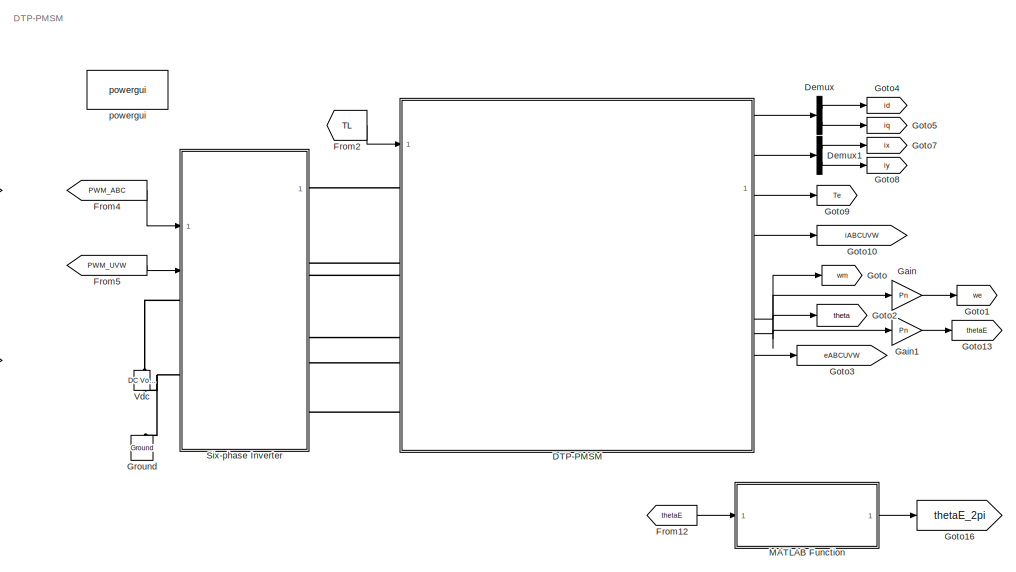
[diagram: root canvas - part 1/2, top right region]
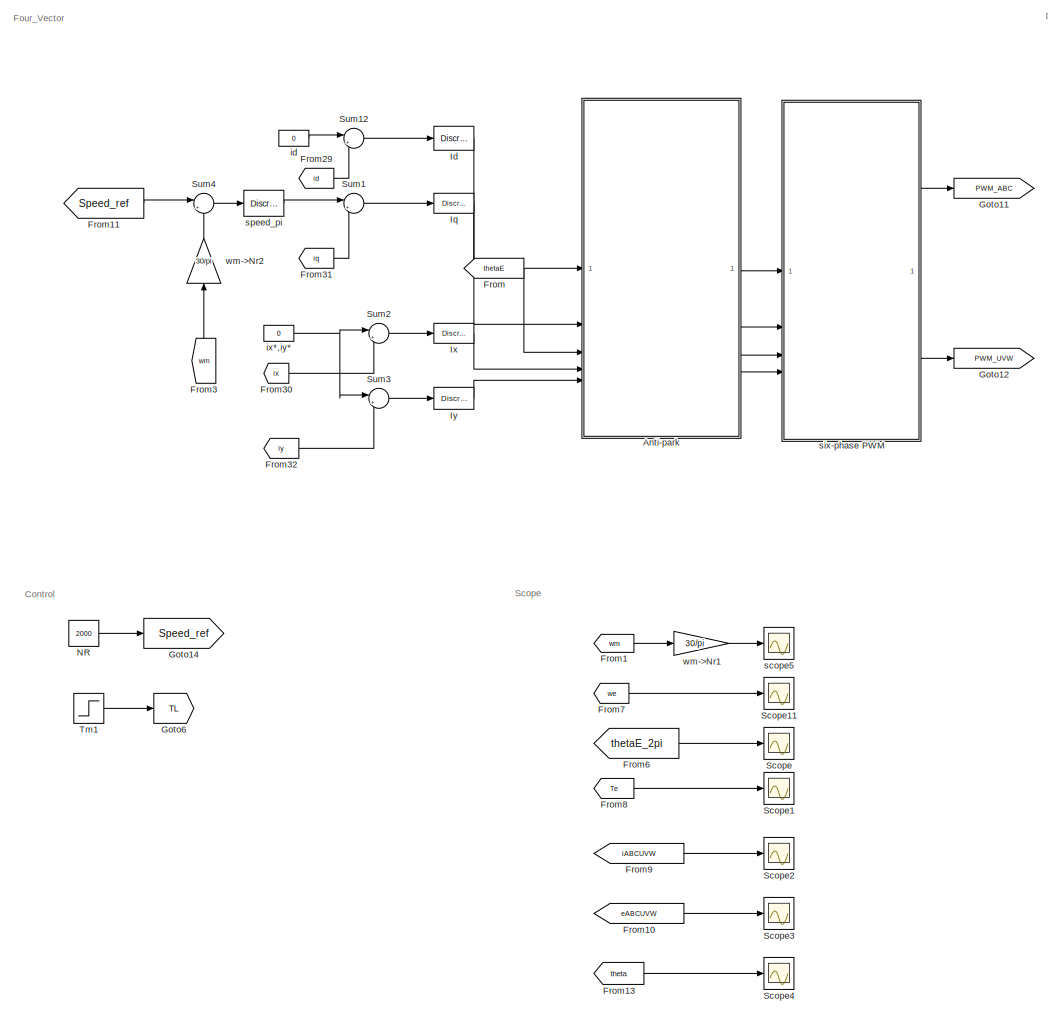
[diagram: root canvas - part 2/2, left side, full height]
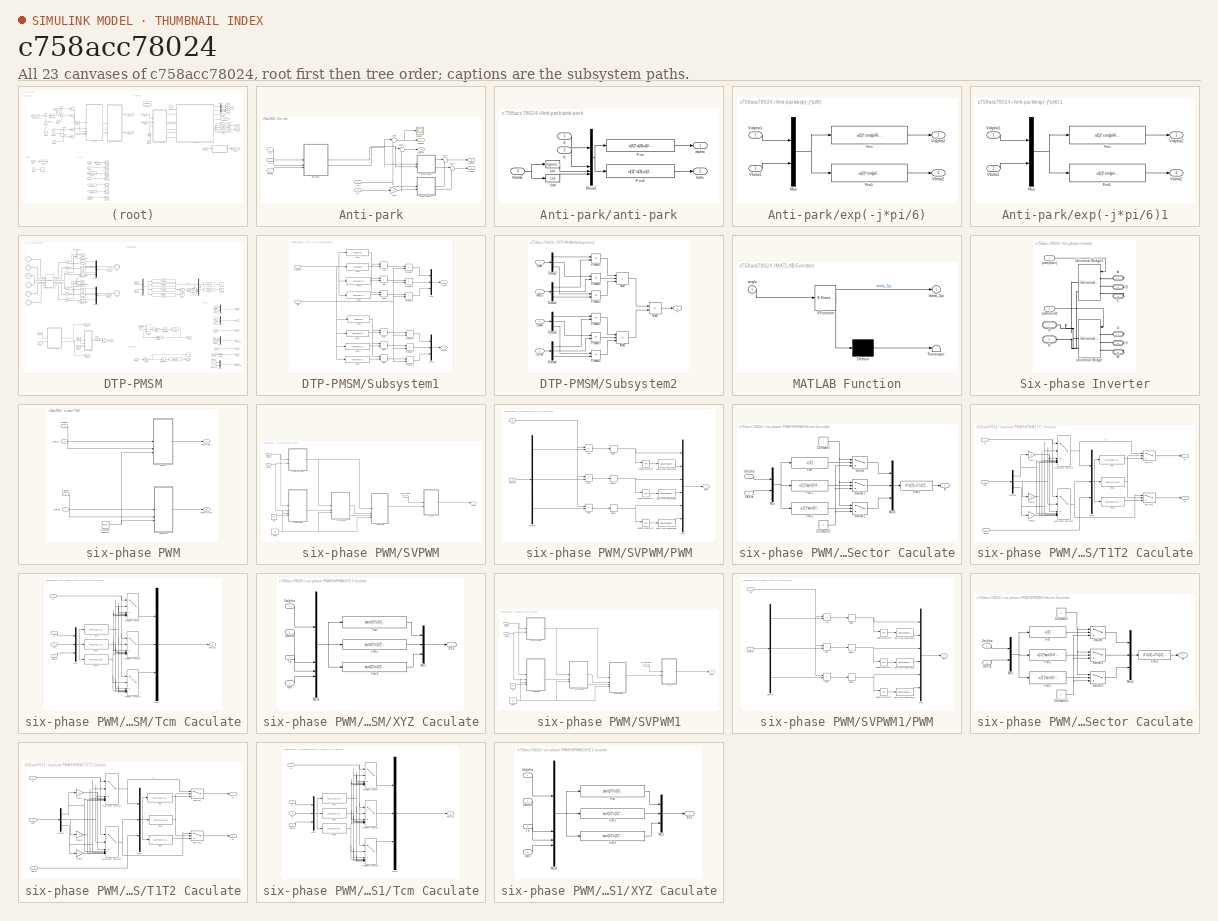
[diagram: thumbnail index - all 23 canvases of the model, root first then tree order]
MODEL slx_c758acc78024
KIND model
CONFIG AbsTol = auto
CONFIG EnableMultiTasking = off
CONFIG FixedStep = 1e-6
CONFIG InitFcn = Udc=100;\nKp_omega = 2;\nKi_omega = 0;\n\nKp_id = 0.008*550;\nKi_id = 1.4*550;\nKp_iq = 0.008*550;\nKi_iq = 1.4*550;\nKp_z  = 0.1;\nKi_z  = 0.0001;\n\nTs = 1e-4;\nflux = 0.015;\nToff = 1.02;
CONFIG MaxStep = auto
CONFIG MinStep = auto
CONFIG RelTol = 1e-3
CONFIG SampleTimeConstraint = Unconstrained
CONFIG SolverName = ode3
CONFIG StartTime = 0.0
CONFIG StopTime = 0.2
WORKSPACE source: mxarray member
WORKSPACE B = 0
WORKSPACE J = 0.000118
WORKSPACE Ki_id = 770
WORKSPACE Ki_iq = 770
WORKSPACE Ki_omega = 0
WORKSPACE Ki_z = 0.0001
WORKSPACE Kp_id = 4.4
WORKSPACE Kp_iq = 4.4
WORKSPACE Kp_omega = 2
WORKSPACE Kp_z = 0.1
WORKSPACE Lm = 1e-05
WORKSPACE Ls = 0.0001
WORKSPACE Pn = 5
WORKSPACE Rs = 0.28
WORKSPACE Toff = 1.02
WORKSPACE Ts = 0.0001
WORKSPACE Vdc = 100
WORKSPACE flux = 0.015
BLOCK [SubSystem] Anti-park
BLOCK [Gain] Anti-park/Gain
  Gain = -1
BLOCK [Scope] Anti-park/Scope7
  Floating = off
  NumInputPorts = 1
  ScopeSpecificationString = Simulink.scopes.TimeScopeBlockCfg('CurrentConfiguration', extmgr.ConfigurationSet(extmgr.Configuration('Core','General UI',true),extmgr.Configuration('Core','Source UI',true),extmgr.Configuration('Sources','WiredSimulink',true,'DataLoggingVariableName','ScopeData1'),extmgr.Configuration('Visuals','Time Domain',true,'SerializedDisplays',{struct('MinYLimReal','-211.12202','MaxYLimReal','209.80293','...<+1541ch>
BLOCK [Sum] Anti-park/Sum
  Inputs = |++
BLOCK [Sum] Anti-park/Sum1
  Inputs = |++
BLOCK [Sum] Anti-park/Sum2
  Inputs = |+-
BLOCK [Sum] Anti-park/Sum3
  Inputs = |+-
BLOCK [Inport] Anti-park/ThetaE
  Port = 3
BLOCK [Outport] Anti-park/Ualpha1
  VectorParamsAs1DForOutWhenUnconnected = off
BLOCK [Outport] Anti-park/Ualpha2
  Port = 3
  VectorParamsAs1DForOutWhenUnconnected = off
BLOCK [Outport] Anti-park/Ubeta1
  Port = 2
  VectorParamsAs1DForOutWhenUnconnected = off
BLOCK [Outport] Anti-park/Ubeta2
  Port = 4
  VectorParamsAs1DForOutWhenUnconnected = off
BLOCK [Inport] Anti-park/Ud
BLOCK [Inport] Anti-park/Uq
  Port = 2
BLOCK [Inport] Anti-park/Ux
  Port = 4
BLOCK [Inport] Anti-park/Uy
  Port = 5
BLOCK [SubSystem] Anti-park/anti-park
BLOCK [Fcn] Anti-park/anti-park/Fcn
  Expr = u[1]*u[4]-u[2]*u[3]
BLOCK [Fcn] Anti-park/anti-park/Fcn1
  Expr = u[1]*u[3]+u[2]*u[4]
BLOCK [Mux] Anti-park/anti-park/Mux2
  DisplayOption = bar
BLOCK [Outport] Anti-park/anti-park/alpha
  VectorParamsAs1DForOutWhenUnconnected = off
BLOCK [Outport] Anti-park/anti-park/beta
  Port = 2
  VectorParamsAs1DForOutWhenUnconnected = off
BLOCK [Trigonometry] Anti-park/anti-park/cos
  Operator = cos
BLOCK [Inport] Anti-park/anti-park/d
BLOCK [Inport] Anti-park/anti-park/q
  Port = 2
BLOCK [Trigonometry] Anti-park/anti-park/sin
BLOCK [Inport] Anti-park/anti-park/thetaE
  Port = 3
BLOCK [SubSystem] Anti-park/exp(-j*pi//6)
BLOCK [Fcn] Anti-park/exp(-j*pi//6)/Fcn
  Expr = u(1)*cos(pi/6)+u(2)*sin(pi/6)
BLOCK [Fcn] Anti-park/exp(-j*pi//6)/Fcn1
  Expr = -u(1)*sin(pi/6)+u(2)*cos(pi/6)
BLOCK [Mux] Anti-park/exp(-j*pi//6)/Mux
  DisplayOption = bar
  Inputs = 2
BLOCK [Inport] Anti-park/exp(-j*pi//6)/Valpha1
BLOCK [Outport] Anti-park/exp(-j*pi//6)/Valpha2
  VectorParamsAs1DForOutWhenUnconnected = off
BLOCK [Inport] Anti-park/exp(-j*pi//6)/Vbeta1
  Port = 2
BLOCK [Outport] Anti-park/exp(-j*pi//6)/Vbeta2
  Port = 2
  VectorParamsAs1DForOutWhenUnconnected = off
BLOCK [SubSystem] Anti-park/exp(-j*pi//6)1
BLOCK [Fcn] Anti-park/exp(-j*pi//6)1/Fcn
  Expr = u(1)*cos(pi/6)+u(2)*sin(pi/6)
BLOCK [Fcn] Anti-park/exp(-j*pi//6)1/Fcn1
  Expr = -u(1)*sin(pi/6)+u(2)*cos(pi/6)
BLOCK [Mux] Anti-park/exp(-j*pi//6)1/Mux
  DisplayOption = bar
  Inputs = 2
BLOCK [Inport] Anti-park/exp(-j*pi//6)1/Valpha1
BLOCK [Outport] Anti-park/exp(-j*pi//6)1/Valpha2
  VectorParamsAs1DForOutWhenUnconnected = off
BLOCK [Inport] Anti-park/exp(-j*pi//6)1/Vbeta1
  Port = 2
BLOCK [Outport] Anti-park/exp(-j*pi//6)1/Vbeta2
  Port = 2
  VectorParamsAs1DForOutWhenUnconnected = off
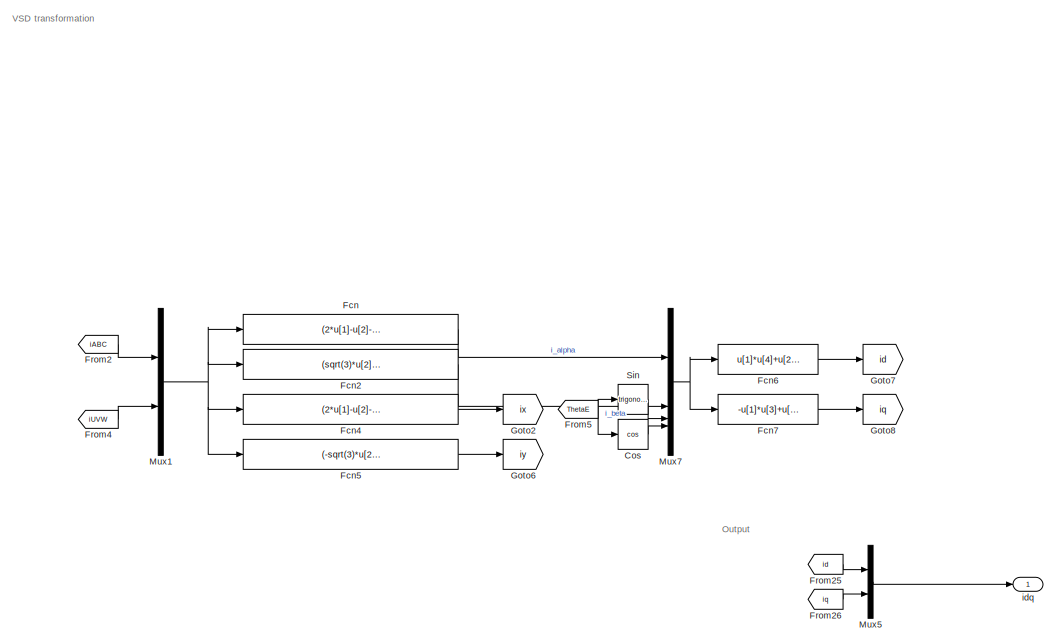
[diagram: DTP-PMSM - part 1/3, top right region]
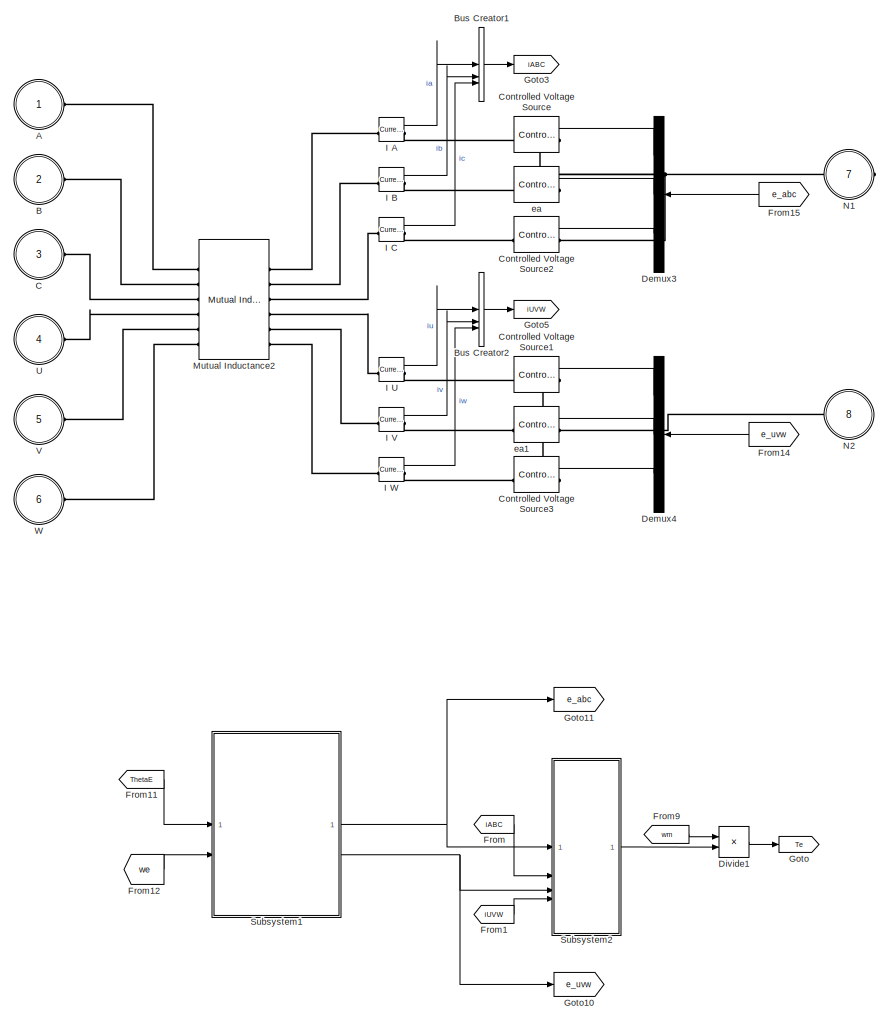
[diagram: DTP-PMSM - part 2/3, left side, full height]
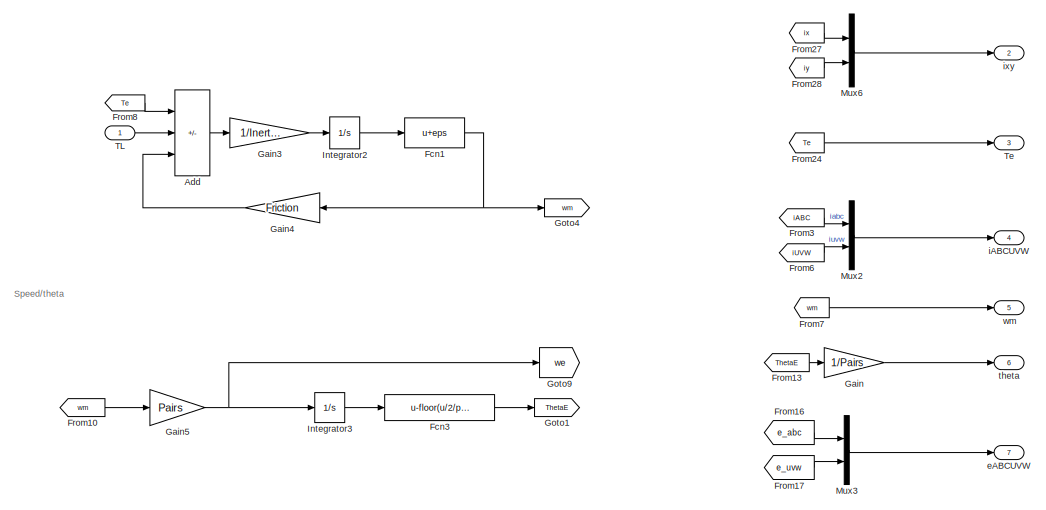
[diagram: DTP-PMSM - part 3/3, bottom right region]
BLOCK [SubSystem] DTP-PMSM
BLOCK [PMIOPort] DTP-PMSM/A
  Side = Left
BLOCK [Sum] DTP-PMSM/Add
  IconShape = rectangular
  Inputs = +--
BLOCK [PMIOPort] DTP-PMSM/B
  Port = 2
  Side = Left
BLOCK [BusCreator] DTP-PMSM/Bus Creator1
  DisplayOption = bar
  InheritFromInputs = on
  Inputs = 3
BLOCK [BusCreator] DTP-PMSM/Bus Creator2
  DisplayOption = bar
  InheritFromInputs = on
  Inputs = 3
BLOCK [PMIOPort] DTP-PMSM/C
  Port = 3
  Side = Left
BLOCK [Reference] DTP-PMSM/Controlled Voltage Source  REF=spsControlledVoltageSourceLib/Controlled Voltage Source
  LibrarySourceBlock = sps_lib/Sources/Controlled Voltage Source
  NameLocation = top
  SourceBlock = spsControlledVoltageSourceLib/Controlled Voltage Source
  SourceType = Controlled Voltage Source
BLOCK [Reference] DTP-PMSM/Controlled Voltage Source1  REF=spsControlledVoltageSourceLib/Controlled Voltage Source
  LibrarySourceBlock = sps_lib/Sources/Controlled Voltage Source
  NameLocation = top
  SourceBlock = spsControlledVoltageSourceLib/Controlled Voltage Source
  SourceType = Controlled Voltage Source
BLOCK [Reference] DTP-PMSM/Controlled Voltage Source2  REF=spsControlledVoltageSourceLib/Controlled Voltage Source
  LibrarySourceBlock = sps_lib/Sources/Controlled Voltage Source
  NameLocation = top
  SourceBlock = spsControlledVoltageSourceLib/Controlled Voltage Source
  SourceType = Controlled Voltage Source
BLOCK [Reference] DTP-PMSM/Controlled Voltage Source3  REF=spsControlledVoltageSourceLib/Controlled Voltage Source
  LibrarySourceBlock = sps_lib/Sources/Controlled Voltage Source
  NameLocation = top
  SourceBlock = spsControlledVoltageSourceLib/Controlled Voltage Source
  SourceType = Controlled Voltage Source
BLOCK [Trigonometry] DTP-PMSM/Cos
  Operator = cos
BLOCK [Demux] DTP-PMSM/Demux3
  NameLocation = top
  Outputs = 3
BLOCK [Demux] DTP-PMSM/Demux4
  NameLocation = top
  Outputs = 3
BLOCK [Product] DTP-PMSM/Divide1
  Inputs = /*
BLOCK [Fcn] DTP-PMSM/Fcn
  Expr = (2*u[1]-u[2]-u[3]+sqrt(3)*u[4]-sqrt(3)*u[5])/6
BLOCK [Fcn] DTP-PMSM/Fcn1
  Expr = u+eps
  NameLocation = top
BLOCK [Fcn] DTP-PMSM/Fcn2
  Expr = (sqrt(3)*u[2]-sqrt(3)*u[3]+u[4]+u[5]-2*u[6])/6
BLOCK [Fcn] DTP-PMSM/Fcn3
  Commented = through
  Expr = u-floor(u/2/pi)*2*pi
BLOCK [Fcn] DTP-PMSM/Fcn4
  Expr = (2*u[1]-u[2]-u[3]-sqrt(3)*u[4]+sqrt(3)*u[5])/6
BLOCK [Fcn] DTP-PMSM/Fcn5
  Expr = (-sqrt(3)*u[2]+sqrt(3)*u[3]+u[4]+u[5]-2*u[6])/6
BLOCK [Fcn] DTP-PMSM/Fcn6
  Expr = u[1]*u[4]+u[2]*u[3]
BLOCK [Fcn] DTP-PMSM/Fcn7
  Expr = -u[1]*u[3]+u[2]*u[4]
BLOCK [From] DTP-PMSM/From
  GotoTag = iABC
  TagVisibility = global
BLOCK [From] DTP-PMSM/From1
  GotoTag = iUVW
  TagVisibility = global
BLOCK [From] DTP-PMSM/From10
  GotoTag = wm
  TagVisibility = global
BLOCK [From] DTP-PMSM/From11
  GotoTag = ThetaE
  TagVisibility = global
BLOCK [From] DTP-PMSM/From12
  GotoTag = we
BLOCK [From] DTP-PMSM/From13
  GotoTag = ThetaE
  TagVisibility = global
BLOCK [From] DTP-PMSM/From14
  GotoTag = e_uvw
BLOCK [From] DTP-PMSM/From15
  GotoTag = e_abc
BLOCK [From] DTP-PMSM/From16
  GotoTag = e_abc
BLOCK [From] DTP-PMSM/From17
  GotoTag = e_uvw
BLOCK [From] DTP-PMSM/From2
  GotoTag = iABC
  TagVisibility = global
BLOCK [From] DTP-PMSM/From24
  GotoTag = Te
  TagVisibility = global
BLOCK [From] DTP-PMSM/From25
  GotoTag = id
  TagVisibility = global
BLOCK [From] DTP-PMSM/From26
  GotoTag = iq
  TagVisibility = global
BLOCK [From] DTP-PMSM/From27
  GotoTag = ix
  TagVisibility = global
BLOCK [From] DTP-PMSM/From28
  GotoTag = iy
  TagVisibility = global
BLOCK [From] DTP-PMSM/From3
  GotoTag = iABC
  TagVisibility = global
BLOCK [From] DTP-PMSM/From4
  GotoTag = iUVW
  TagVisibility = global
BLOCK [From] DTP-PMSM/From5
  GotoTag = ThetaE
  TagVisibility = global
BLOCK [From] DTP-PMSM/From6
  GotoTag = iUVW
  TagVisibility = global
BLOCK [From] DTP-PMSM/From7
  GotoTag = wm
  TagVisibility = global
BLOCK [From] DTP-PMSM/From8
  GotoTag = Te
  TagVisibility = global
BLOCK [From] DTP-PMSM/From9
  GotoTag = wm
  TagVisibility = global
BLOCK [Gain] DTP-PMSM/Gain
  Gain = 1/Pairs
BLOCK [Gain] DTP-PMSM/Gain3
  Gain = 1/Inertia
BLOCK [Gain] DTP-PMSM/Gain4
  Gain = Friction
BLOCK [Gain] DTP-PMSM/Gain5
  Gain = Pairs
BLOCK [Goto] DTP-PMSM/Goto
  GotoTag = Te
  TagVisibility = global
BLOCK [Goto] DTP-PMSM/Goto1
  GotoTag = ThetaE
  TagVisibility = global
BLOCK [Goto] DTP-PMSM/Goto10
  GotoTag = e_uvw
BLOCK [Goto] DTP-PMSM/Goto11
  GotoTag = e_abc
BLOCK [Goto] DTP-PMSM/Goto2
  GotoTag = ix
  TagVisibility = global
BLOCK [Goto] DTP-PMSM/Goto3
  GotoTag = iABC
  TagVisibility = global
BLOCK [Goto] DTP-PMSM/Goto4
  GotoTag = wm
  TagVisibility = global
BLOCK [Goto] DTP-PMSM/Goto5
  GotoTag = iUVW
  TagVisibility = global
BLOCK [Goto] DTP-PMSM/Goto6
  GotoTag = iy
  TagVisibility = global
BLOCK [Goto] DTP-PMSM/Goto7
  GotoTag = id
  TagVisibility = global
BLOCK [Goto] DTP-PMSM/Goto8
  GotoTag = iq
  TagVisibility = global
BLOCK [Goto] DTP-PMSM/Goto9
  GotoTag = we
  NameLocation = top
BLOCK [Reference] DTP-PMSM/I A  REF=spsCurrentMeasurementLib/Current Measurement
  LibrarySourceBlock = sps_lib/Sensors and Measurements/Current Measurement
  SourceBlock = spsCurrentMeasurementLib/Current Measurement
  SourceType = Current Measurement
BLOCK [Reference] DTP-PMSM/I B  REF=spsCurrentMeasurementLib/Current Measurement
  LibrarySourceBlock = sps_lib/Sensors and Measurements/Current Measurement
  SourceBlock = spsCurrentMeasurementLib/Current Measurement
  SourceType = Current Measurement
BLOCK [Reference] DTP-PMSM/I C  REF=spsCurrentMeasurementLib/Current Measurement
  LibrarySourceBlock = sps_lib/Sensors and Measurements/Current Measurement
  SourceBlock = spsCurrentMeasurementLib/Current Measurement
  SourceType = Current Measurement
BLOCK [Reference] DTP-PMSM/I U  REF=spsCurrentMeasurementLib/Current Measurement
  LibrarySourceBlock = sps_lib/Sensors and Measurements/Current Measurement
  SourceBlock = spsCurrentMeasurementLib/Current Measurement
  SourceType = Current Measurement
BLOCK [Reference] DTP-PMSM/I V  REF=spsCurrentMeasurementLib/Current Measurement
  LibrarySourceBlock = sps_lib/Sensors and Measurements/Current Measurement
  SourceBlock = spsCurrentMeasurementLib/Current Measurement
  SourceType = Current Measurement
BLOCK [Reference] DTP-PMSM/I W  REF=spsCurrentMeasurementLib/Current Measurement
  LibrarySourceBlock = sps_lib/Sensors and Measurements/Current Measurement
  SourceBlock = spsCurrentMeasurementLib/Current Measurement
  SourceType = Current Measurement
BLOCK [Integrator] DTP-PMSM/Integrator2
  LowerSaturationLimit = -100
  UpperSaturationLimit = 100
BLOCK [Integrator] DTP-PMSM/Integrator3
BLOCK [Reference] DTP-PMSM/Mutual Inductance2  REF=spsMutualInductanceLib/Mutual Inductance
  AttributesFormatString = \n
  LibrarySourceBlock = sps_lib/Passives/Mutual Inductance
  SourceBlock = spsMutualInductanceLib/Mutual Inductance
  SourceType = Mutual Inductance
BLOCK [Mux] DTP-PMSM/Mux1
  DisplayOption = bar
  Inputs = 2
BLOCK [Mux] DTP-PMSM/Mux2
  DisplayOption = bar
  Inputs = 2
BLOCK [Mux] DTP-PMSM/Mux3
  DisplayOption = bar
  Inputs = 2
BLOCK [Mux] DTP-PMSM/Mux5
  DisplayOption = bar
  Inputs = 2
BLOCK [Mux] DTP-PMSM/Mux6
  DisplayOption = bar
  Inputs = 2
BLOCK [Mux] DTP-PMSM/Mux7
  DisplayOption = bar
BLOCK [PMIOPort] DTP-PMSM/N1
  Port = 7
  Side = Right
BLOCK [PMIOPort] DTP-PMSM/N2
  Port = 8
  Side = Right
BLOCK [Trigonometry] DTP-PMSM/Sin
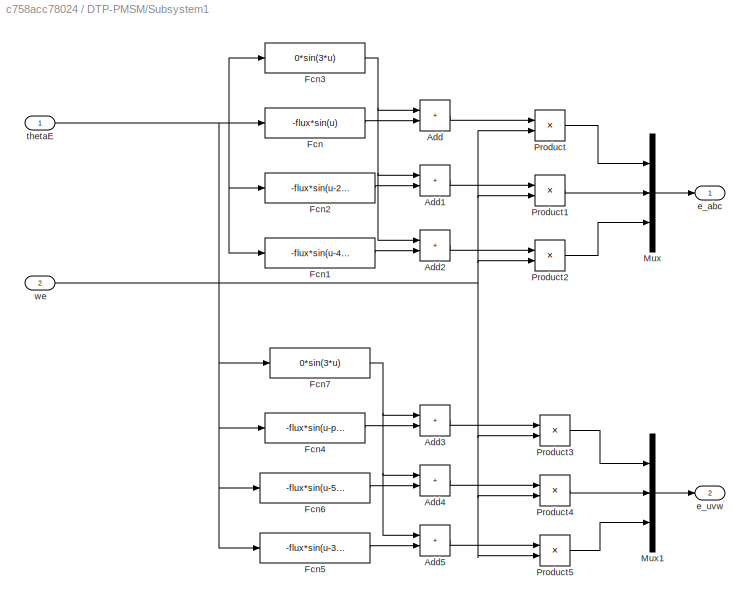
BLOCK [SubSystem] DTP-PMSM/Subsystem1
BLOCK [Sum] DTP-PMSM/Subsystem1/Add
  IconShape = rectangular
BLOCK [Sum] DTP-PMSM/Subsystem1/Add1
  IconShape = rectangular
BLOCK [Sum] DTP-PMSM/Subsystem1/Add2
  IconShape = rectangular
BLOCK [Sum] DTP-PMSM/Subsystem1/Add3
  IconShape = rectangular
BLOCK [Sum] DTP-PMSM/Subsystem1/Add4
  IconShape = rectangular
BLOCK [Sum] DTP-PMSM/Subsystem1/Add5
  IconShape = rectangular
BLOCK [Fcn] DTP-PMSM/Subsystem1/Fcn
  Expr = -flux*sin(u)
BLOCK [Fcn] DTP-PMSM/Subsystem1/Fcn1
  Expr = -flux*sin(u-4*pi/3)
BLOCK [Fcn] DTP-PMSM/Subsystem1/Fcn2
  Expr = -flux*sin(u-2*pi/3)
BLOCK [Fcn] DTP-PMSM/Subsystem1/Fcn3
  Expr = 0*sin(3*u)
BLOCK [Fcn] DTP-PMSM/Subsystem1/Fcn4
  Expr = -flux*sin(u-pi/6)
BLOCK [Fcn] DTP-PMSM/Subsystem1/Fcn5
  Expr = -flux*sin(u-3*pi/2)
BLOCK [Fcn] DTP-PMSM/Subsystem1/Fcn6
  Expr = -flux*sin(u-5*pi/6)
BLOCK [Fcn] DTP-PMSM/Subsystem1/Fcn7
  Expr = 0*sin(3*u)
BLOCK [Mux] DTP-PMSM/Subsystem1/Mux
  DisplayOption = bar
  Inputs = 3
BLOCK [Mux] DTP-PMSM/Subsystem1/Mux1
  DisplayOption = bar
  Inputs = 3
BLOCK [Product] DTP-PMSM/Subsystem1/Product
BLOCK [Product] DTP-PMSM/Subsystem1/Product1
BLOCK [Product] DTP-PMSM/Subsystem1/Product2
BLOCK [Product] DTP-PMSM/Subsystem1/Product3
BLOCK [Product] DTP-PMSM/Subsystem1/Product4
BLOCK [Product] DTP-PMSM/Subsystem1/Product5
BLOCK [Outport] DTP-PMSM/Subsystem1/e_abc
BLOCK [Outport] DTP-PMSM/Subsystem1/e_uvw
  Port = 2
BLOCK [Inport] DTP-PMSM/Subsystem1/thetaE
BLOCK [Inport] DTP-PMSM/Subsystem1/we
  Port = 2
BLOCK [SubSystem] DTP-PMSM/Subsystem2
BLOCK [Sum] DTP-PMSM/Subsystem2/Add
  IconShape = rectangular
  Inputs = +++
BLOCK [Sum] DTP-PMSM/Subsystem2/Add1
  IconShape = rectangular
  Inputs = +++
BLOCK [Sum] DTP-PMSM/Subsystem2/Add2
  IconShape = rectangular
BLOCK [Demux] DTP-PMSM/Subsystem2/Demux1
  Outputs = 3
BLOCK [Demux] DTP-PMSM/Subsystem2/Demux2
  Outputs = 3
BLOCK [Demux] DTP-PMSM/Subsystem2/Demux3
  Outputs = 3
BLOCK [Demux] DTP-PMSM/Subsystem2/Demux4
  Outputs = 3
BLOCK [Outport] DTP-PMSM/Subsystem2/P
BLOCK [Product] DTP-PMSM/Subsystem2/Product1
BLOCK [Product] DTP-PMSM/Subsystem2/Product2
BLOCK [Product] DTP-PMSM/Subsystem2/Product3
BLOCK [Product] DTP-PMSM/Subsystem2/Product4
BLOCK [Product] DTP-PMSM/Subsystem2/Product5
BLOCK [Product] DTP-PMSM/Subsystem2/Product6
BLOCK [Inport] DTP-PMSM/Subsystem2/e_abc
BLOCK [Inport] DTP-PMSM/Subsystem2/e_uvw
  Port = 3
BLOCK [Inport] DTP-PMSM/Subsystem2/iABC
  Port = 2
BLOCK [Inport] DTP-PMSM/Subsystem2/iUVW
  Port = 4
BLOCK [Inport] DTP-PMSM/TL
BLOCK [Outport] DTP-PMSM/Te
  Port = 3
  VectorParamsAs1DForOutWhenUnconnected = off
BLOCK [PMIOPort] DTP-PMSM/U
  Port = 4
  Side = Left
BLOCK [PMIOPort] DTP-PMSM/V
  Port = 5
  Side = Left
BLOCK [PMIOPort] DTP-PMSM/W
  Port = 6
  Side = Left
BLOCK [Outport] DTP-PMSM/eABCUVW
  Port = 7
  VectorParamsAs1DForOutWhenUnconnected = off
BLOCK [Reference] DTP-PMSM/ea  REF=spsControlledVoltageSourceLib/Controlled Voltage Source
  LibrarySourceBlock = sps_lib/Sources/Controlled Voltage Source
  NameLocation = top
  SourceBlock = spsControlledVoltageSourceLib/Controlled Voltage Source
  SourceType = Controlled Voltage Source
BLOCK [Reference] DTP-PMSM/ea1  REF=spsControlledVoltageSourceLib/Controlled Voltage Source
  LibrarySourceBlock = sps_lib/Sources/Controlled Voltage Source
  NameLocation = top
  SourceBlock = spsControlledVoltageSourceLib/Controlled Voltage Source
  SourceType = Controlled Voltage Source
BLOCK [Outport] DTP-PMSM/iABCUVW
  Port = 4
  VectorParamsAs1DForOutWhenUnconnected = off
BLOCK [Outport] DTP-PMSM/idq
  VectorParamsAs1DForOutWhenUnconnected = off
BLOCK [Outport] DTP-PMSM/ixy
  Port = 2
  VectorParamsAs1DForOutWhenUnconnected = off
BLOCK [Outport] DTP-PMSM/theta
  Port = 6
  VectorParamsAs1DForOutWhenUnconnected = off
BLOCK [Outport] DTP-PMSM/wm
  Port = 5
  VectorParamsAs1DForOutWhenUnconnected = off
BLOCK [Demux] Demux
  Outputs = 2
BLOCK [Demux] Demux1
  Outputs = 2
BLOCK [From] From
  GotoTag = thetaE
BLOCK [From] From1
  GotoTag = wm
BLOCK [From] From10
  GotoTag = eABCUVW
BLOCK [From] From11
  GotoTag = Speed_ref
BLOCK [From] From12
  GotoTag = thetaE
BLOCK [From] From13
  GotoTag = theta
BLOCK [From] From2
  GotoTag = TL
BLOCK [From] From29
  GotoTag = id
BLOCK [From] From3
  GotoTag = wm
  NameLocation = right
BLOCK [From] From30
  GotoTag = ix
BLOCK [From] From31
  GotoTag = iq
BLOCK [From] From32
  GotoTag = iy
BLOCK [From] From4
  GotoTag = PWM_ABC
BLOCK [From] From5
  GotoTag = PWM_UVW
BLOCK [From] From6
  GotoTag = thetaE_2pi
BLOCK [From] From7
  GotoTag = we
BLOCK [From] From8
  GotoTag = Te
BLOCK [From] From9
  GotoTag = iABCUVW
BLOCK [Gain] Gain
  Gain = Pn
BLOCK [Gain] Gain1
  Gain = Pn
BLOCK [Goto] Goto
  GotoTag = wm
BLOCK [Goto] Goto1
  GotoTag = we
BLOCK [Goto] Goto10
  GotoTag = iABCUVW
BLOCK [Goto] Goto11
  GotoTag = PWM_ABC
BLOCK [Goto] Goto12
  GotoTag = PWM_UVW
BLOCK [Goto] Goto13
  GotoTag = thetaE
BLOCK [Goto] Goto14
  GotoTag = Speed_ref
BLOCK [Goto] Goto16
  GotoTag = thetaE_2pi
BLOCK [Goto] Goto2
  GotoTag = theta
BLOCK [Goto] Goto3
  GotoTag = eABCUVW
BLOCK [Goto] Goto4
  GotoTag = id
BLOCK [Goto] Goto5
  GotoTag = iq
BLOCK [Goto] Goto6
  GotoTag = TL
BLOCK [Goto] Goto7
  GotoTag = ix
BLOCK [Goto] Goto8
  GotoTag = iy
BLOCK [Goto] Goto9
  GotoTag = Te
BLOCK [Reference] Ground  REF=spsGroundLib/Ground
  LibrarySourceBlock = sps_lib/Utilities/Ground
  NameLocation = right
  SourceBlock = spsGroundLib/Ground
  SourceType = Ground
BLOCK [Reference] Id  REF=powerlib_extras/Discrete 
Control Blocks/Discrete
PI Controller
  NameLocation = top
  SourceBlock = powerlib_extras/Discrete \nControl Blocks/Discrete\nPI Controller
  SourceType = Discrete PI Controller
BLOCK [Reference] Iq  REF=powerlib_extras/Discrete 
Control Blocks/Discrete
PI Controller
  NameLocation = top
  SourceBlock = powerlib_extras/Discrete \nControl Blocks/Discrete\nPI Controller
  SourceType = Discrete PI Controller
BLOCK [Reference] Ix  REF=powerlib_extras/Discrete 
Control Blocks/Discrete
PI Controller
  NameLocation = top
  SourceBlock = powerlib_extras/Discrete \nControl Blocks/Discrete\nPI Controller
  SourceType = Discrete PI Controller
BLOCK [Reference] Iy  REF=powerlib_extras/Discrete 
Control Blocks/Discrete
PI Controller
  NameLocation = top
  SourceBlock = powerlib_extras/Discrete \nControl Blocks/Discrete\nPI Controller
  SourceType = Discrete PI Controller
BLOCK [SubSystem] MATLAB Function
  ErrorFcn = Stateflow.Translate.translate
  NameLocation = top
  PermitHierarchicalResolution = ExplicitOnly
  SFBlockType = MATLAB Function
  TreatAsAtomicUnit = on
BLOCK [Demux] MATLAB Function/ Demux 
  Outputs = 1
BLOCK [S-Function] MATLAB Function/ SFunction 
  EnableBusSupport = on
  FunctionName = sf_sfun
  PortCounts = [1 2]
  SFcnIsStateOwnerBlock = off
  SFunctionDeploymentMode = off
  Tag = Stateflow S-Function 1
BLOCK [Terminator] MATLAB Function/ Terminator 
BLOCK [Inport] MATLAB Function/angle
BLOCK [Outport] MATLAB Function/theta_2pi
BLOCK [Constant] NR
  Value = 2000
BLOCK [Scope] Scope
  Floating = off
  NumInputPorts = 1
  ScopeSpecificationString = Simulink.scopes.TimeScopeBlockCfg('CurrentConfiguration', extmgr.ConfigurationSet(extmgr.Configuration('Core','General UI',true),extmgr.Configuration('Core','Source UI',true),extmgr.Configuration('Sources','WiredSimulink',true,'DataLoggingVariableName','ScopeData1'),extmgr.Configuration('Visuals','Time Domain',true,'SerializedDisplays',{struct('MinYLimReal','-0.78538','MaxYLimReal','7.06846','YLab...<+1531ch>
BLOCK [Scope] Scope1
  Floating = off
  NumInputPorts = 1
  ScopeSpecificationString = Simulink.scopes.TimeScopeBlockCfg('CurrentConfiguration', extmgr.ConfigurationSet(extmgr.Configuration('Core','General UI',true),extmgr.Configuration('Core','Source UI',true),extmgr.Configuration('Sources','WiredSimulink',true,'DataLoggingVariableName','ScopeData2'),extmgr.Configuration('Visuals','Time Domain',true,'SerializedDisplays',{struct('MinYLimReal','-1.57619','MaxYLimReal','9.1824','YLabe...<+1485ch>
BLOCK [Scope] Scope11
  Floating = off
  NumInputPorts = 1
  ScopeSpecificationString = Simulink.scopes.TimeScopeBlockCfg('CurrentConfiguration', extmgr.ConfigurationSet(extmgr.Configuration('Core','General UI',true),extmgr.Configuration('Core','Source UI',true),extmgr.Configuration('Sources','WiredSimulink',true,'DataLoggingVariableName','ScopeData1'),extmgr.Configuration('Visuals','Time Domain',true,'SerializedDisplays',{struct('MinYLimReal','-69.97864','MaxYLimReal','629.80772','Y...<+1670ch>
BLOCK [Scope] Scope2
  Floating = off
  NumInputPorts = 1
  ScopeSpecificationString = Simulink.scopes.TimeScopeBlockCfg('CurrentConfiguration', extmgr.ConfigurationSet(extmgr.Configuration('Core','General UI',true),extmgr.Configuration('Core','Source UI',true),extmgr.Configuration('Sources','WiredSimulink',true,'DataLoggingVariableName','ScopeData3'),extmgr.Configuration('Visuals','Time Domain',true,'SerializedDisplays',{struct('MinYLimReal','-44.87766','MaxYLimReal','45.27174','YL...<+1753ch>
BLOCK [Scope] Scope3
  Floating = off
  NumInputPorts = 1
  ScopeSpecificationString = Simulink.scopes.TimeScopeBlockCfg('CurrentConfiguration', extmgr.ConfigurationSet(extmgr.Configuration('Core','General UI',true),extmgr.Configuration('Core','Source UI',true),extmgr.Configuration('Sources','WiredSimulink',true,'DataLoggingVariableName','ScopeData4'),extmgr.Configuration('Visuals','Time Domain',true,'SerializedDisplays',{struct('MinYLimReal','-29.88475','MaxYLimReal','29.88189','YL...<+1592ch>
BLOCK [Scope] Scope4
  Floating = off
  NumInputPorts = 1
  ScopeSpecificationString = Simulink.scopes.TimeScopeBlockCfg('CurrentConfiguration', extmgr.ConfigurationSet(extmgr.Configuration('Core','General UI',true),extmgr.Configuration('Core','Source UI',true),extmgr.Configuration('Sources','WiredSimulink',true,'DataLoggingVariableName','ScopeData5'),extmgr.Configuration('Visuals','Time Domain',true),extmgr.Configuration('Tools','Plot Navigation',true),extmgr.Configuration('Tools',...<+40ch>
BLOCK [SubSystem] Six-phase Inverter
BLOCK [PMIOPort] Six-phase Inverter/A
  Side = Right
BLOCK [PMIOPort] Six-phase Inverter/B
  Port = 2
  Side = Right
BLOCK [PMIOPort] Six-phase Inverter/C
  Port = 3
  Side = Right
BLOCK [PMIOPort] Six-phase Inverter/N
  Port = 8
  Side = Left
BLOCK [PMIOPort] Six-phase Inverter/P
  Port = 7
  Side = Left
BLOCK [PMIOPort] Six-phase Inverter/U
  Port = 4
  Side = Right
BLOCK [Reference] Six-phase Inverter/Universal Bridge  REF=spsUniversalBridgeLib/Universal Bridge
  LibrarySourceBlock = sps_lib/Power Electronics/Universal Bridge
  SourceBlock = spsUniversalBridgeLib/Universal Bridge
  SourceType = Universal Bridge
BLOCK [Reference] Six-phase Inverter/Universal Bridge1  REF=spsUniversalBridgeLib/Universal Bridge
  LibrarySourceBlock = sps_lib/Power Electronics/Universal Bridge
  SourceBlock = spsUniversalBridgeLib/Universal Bridge
  SourceType = Universal Bridge
BLOCK [PMIOPort] Six-phase Inverter/V
  Port = 5
  Side = Right
BLOCK [PMIOPort] Six-phase Inverter/W
  Port = 6
  Side = Right
BLOCK [Inport] Six-phase Inverter/pwm(abc)
BLOCK [Inport] Six-phase Inverter/pwm(uvw)
  Port = 2
BLOCK [Sum] Sum1
  Inputs = |+-
BLOCK [Sum] Sum12
  Inputs = |+-
BLOCK [Sum] Sum2
  Inputs = |+-
BLOCK [Sum] Sum3
  Inputs = |+-
BLOCK [Sum] Sum4
  Inputs = |+-
BLOCK [Step] Tm1
  SampleTime = 0
  Time = 0.1
BLOCK [Reference] Vdc  REF=spsDCVoltageSourceLib/DC Voltage Source
  LibrarySourceBlock = sps_lib/Sources/DC Voltage Source
  NameLocation = right
  SourceBlock = spsDCVoltageSourceLib/DC Voltage Source
  SourceType = DC Voltage Source
BLOCK [Constant] id
  Value = 0
BLOCK [Constant] ix*,iy*
  Value = 0
BLOCK [Reference] powergui  REF=spspowerguiLib/powergui
  LibrarySourceBlock = sps_lib/powergui
  Priority = 1
  SourceBlock = spspowerguiLib/powergui
  SourceType = PSB option menu block
BLOCK [Scope] scope5
  Floating = off
  NumInputPorts = 1
  ScopeSpecificationString = Simulink.scopes.TimeScopeBlockCfg('CurrentConfiguration', extmgr.ConfigurationSet(extmgr.Configuration('Core','General UI',true,'FigureColor',[0.8 0.8 0.8]),extmgr.Configuration('Core','Source UI',true),extmgr.Configuration('Sources','WiredSimulink',true,'DataLogging',true,'DataLoggingVariableName','ScopeData1','DataLoggingSaveFormat','StructureWithTime','DataLoggingDecimation','1','DataLoggingDec...<+2818ch>
BLOCK [SubSystem] six-phase PWM
BLOCK [Outport] six-phase PWM/PWM(ABC)
BLOCK [Outport] six-phase PWM/PWM(UVW)
  Port = 2
BLOCK [Reference] six-phase PWM/Repeating Sequence  REF=simulink/Sources/Repeating
Sequence
  SourceBlock = simulink/Sources/Repeating\nSequence
  SourceType = Repeating table
BLOCK [SubSystem] six-phase PWM/SVPWM
BLOCK [Inport] six-phase PWM/SVPWM/Carrier wave
  Port = 3
BLOCK [SubSystem] six-phase PWM/SVPWM/PWM
BLOCK [Sum] six-phase PWM/SVPWM/PWM/Add
  IconShape = rectangular
  Inputs = +-
BLOCK [Sum] six-phase PWM/SVPWM/PWM/Add1
  IconShape = rectangular
  Inputs = +-
BLOCK [Sum] six-phase PWM/SVPWM/PWM/Add2
  IconShape = rectangular
  Inputs = +-
BLOCK [DataTypeConversion] six-phase PWM/SVPWM/PWM/Data Type Conversion1
  OutDataTypeStr = double
BLOCK [DataTypeConversion] six-phase PWM/SVPWM/PWM/Data Type Conversion2
  OutDataTypeStr = double
BLOCK [DataTypeConversion] six-phase PWM/SVPWM/PWM/Data Type Conversion3
  OutDataTypeStr = double
BLOCK [Demux] six-phase PWM/SVPWM/PWM/Demux
  Outputs = 3
BLOCK [Inport] six-phase PWM/SVPWM/PWM/In
BLOCK [Logic] six-phase PWM/SVPWM/PWM/Logical Operator
  AllPortsSameDT = off
  Operator = NOT
  OutDataTypeStr = boolean
BLOCK [Logic] six-phase PWM/SVPWM/PWM/Logical Operator1
  AllPortsSameDT = off
  Operator = NOT
  OutDataTypeStr = boolean
BLOCK [Logic] six-phase PWM/SVPWM/PWM/Logical Operator2
  AllPortsSameDT = off
  Operator = NOT
  OutDataTypeStr = boolean
BLOCK [Mux] six-phase PWM/SVPWM/PWM/Mux
  DisplayOption = bar
  Inputs = 6
BLOCK [Outport] six-phase PWM/SVPWM/PWM/PWM
  VectorParamsAs1DForOutWhenUnconnected = off
BLOCK [Relay] six-phase PWM/SVPWM/PWM/Relay
BLOCK [Relay] six-phase PWM/SVPWM/PWM/Relay1
BLOCK [Relay] six-phase PWM/SVPWM/PWM/Relay2
BLOCK [Inport] six-phase PWM/SVPWM/PWM/Tcm123
  Port = 2
BLOCK [Outport] six-phase PWM/SVPWM/Pulse
  VectorParamsAs1DForOutWhenUnconnected = off
BLOCK [SubSystem] six-phase PWM/SVPWM/Sector Caculate
BLOCK [Constant] six-phase PWM/SVPWM/Sector Caculate/Constant
BLOCK [Constant] six-phase PWM/SVPWM/Sector Caculate/Constant1
  Value = 0
BLOCK [Fcn] six-phase PWM/SVPWM/Sector Caculate/Fcn
  Expr = u[2]
BLOCK [Fcn] six-phase PWM/SVPWM/Sector Caculate/Fcn1
  Expr = u[1]*sqrt(3/4)-0.5*u[2]
BLOCK [Fcn] six-phase PWM/SVPWM/Sector Caculate/Fcn2
  Expr = -u[1]*sqrt(3/4)-0.5*u[2]
BLOCK [Fcn] six-phase PWM/SVPWM/Sector Caculate/Fcn3
  Expr = 4*u[3]+2*u[2]+u[1]
BLOCK [Mux] six-phase PWM/SVPWM/Sector Caculate/Mux
  DisplayOption = bar
  Inputs = 2
BLOCK [Mux] six-phase PWM/SVPWM/Sector Caculate/Mux1
  DisplayOption = bar
  Inputs = 3
BLOCK [Outport] six-phase PWM/SVPWM/Sector Caculate/N
  VectorParamsAs1DForOutWhenUnconnected = off
BLOCK [Switch] six-phase PWM/SVPWM/Sector Caculate/Switch
  Criteria = u2 > Threshold
  InputSameDT = off
  SaturateOnIntegerOverflow = off
BLOCK [Switch] six-phase PWM/SVPWM/Sector Caculate/Switch1
  Criteria = u2 > Threshold
  InputSameDT = off
  SaturateOnIntegerOverflow = off
BLOCK [Switch] six-phase PWM/SVPWM/Sector Caculate/Switch2
  Criteria = u2 > Threshold
  InputSameDT = off
  SaturateOnIntegerOverflow = off
BLOCK [Inport] six-phase PWM/SVPWM/Sector Caculate/Ualpha
BLOCK [Inport] six-phase PWM/SVPWM/Sector Caculate/Ubeta
  Port = 2
BLOCK [SubSystem] six-phase PWM/SVPWM/T1T2 Caculate
BLOCK [Demux] six-phase PWM/SVPWM/T1T2 Caculate/Demux
  Outputs = 3
BLOCK [Fcn] six-phase PWM/SVPWM/T1T2 Caculate/Fcn
  Expr = u[1]*u[3]/(u[1]+u[2])
BLOCK [Fcn] six-phase PWM/SVPWM/T1T2 Caculate/Fcn1
  Expr = u[3]-u[2]-u[1]
BLOCK [Fcn] six-phase PWM/SVPWM/T1T2 Caculate/Fcn2
  Expr = u[2]*u[3]/(u[1]+u[2])
BLOCK [Gain] six-phase PWM/SVPWM/T1T2 Caculate/Gain
  Gain = -1
BLOCK [Gain] six-phase PWM/SVPWM/T1T2 Caculate/Gain1
  Gain = -1
BLOCK [Gain] six-phase PWM/SVPWM/T1T2 Caculate/Gain2
  Gain = -1
BLOCK [MultiPortSwitch] six-phase PWM/SVPWM/T1T2 Caculate/Multiport Switch
  DiagnosticForDefault = None
  InputSameDT = off
  Inputs = 6
  SaturateOnIntegerOverflow = off
BLOCK [MultiPortSwitch] six-phase PWM/SVPWM/T1T2 Caculate/Multiport Switch1
  DiagnosticForDefault = None
  InputSameDT = off
  Inputs = 6
  SaturateOnIntegerOverflow = off
BLOCK [Mux] six-phase PWM/SVPWM/T1T2 Caculate/Mux
  DisplayOption = bar
  Inputs = 3
BLOCK [Inport] six-phase PWM/SVPWM/T1T2 Caculate/N
BLOCK [Switch] six-phase PWM/SVPWM/T1T2 Caculate/Switch
  Criteria = u2 > Threshold
  InputSameDT = off
  SaturateOnIntegerOverflow = off
BLOCK [Switch] six-phase PWM/SVPWM/T1T2 Caculate/Switch1
  Criteria = u2 > Threshold
  InputSameDT = off
  SaturateOnIntegerOverflow = off
BLOCK [Outport] six-phase PWM/SVPWM/T1T2 Caculate/T1
  VectorParamsAs1DForOutWhenUnconnected = off
BLOCK [Outport] six-phase PWM/SVPWM/T1T2 Caculate/T2
  Port = 2
  VectorParamsAs1DForOutWhenUnconnected = off
BLOCK [Inport] six-phase PWM/SVPWM/T1T2 Caculate/Tpwm
  Port = 3
BLOCK [Inport] six-phase PWM/SVPWM/T1T2 Caculate/XYZ
  Port = 2
BLOCK [SubSystem] six-phase PWM/SVPWM/Tcm Caculate
BLOCK [Fcn] six-phase PWM/SVPWM/Tcm Caculate/Fcn
  Expr = (u[3]-u[1]-u[2])/4
BLOCK [Fcn] six-phase PWM/SVPWM/Tcm Caculate/Fcn1
  Expr = (u[3]+u[1]-u[2])/4
BLOCK [Fcn] six-phase PWM/SVPWM/Tcm Caculate/Fcn2
  Expr = (u[3]+u[1]+u[2])/4
BLOCK [MultiPortSwitch] six-phase PWM/SVPWM/Tcm Caculate/Multiport Switch
  DiagnosticForDefault = None
  InputSameDT = off
  Inputs = 6
  SaturateOnIntegerOverflow = off
BLOCK [MultiPortSwitch] six-phase PWM/SVPWM/Tcm Caculate/Multiport Switch1
  DiagnosticForDefault = None
  InputSameDT = off
  Inputs = 6
  SaturateOnIntegerOverflow = off
BLOCK [MultiPortSwitch] six-phase PWM/SVPWM/Tcm Caculate/Multiport Switch2
  DiagnosticForDefault = None
  InputSameDT = off
  Inputs = 6
  SaturateOnIntegerOverflow = off
BLOCK [Mux] six-phase PWM/SVPWM/Tcm Caculate/Mux
  DisplayOption = bar
  Inputs = 3
BLOCK [Mux] six-phase PWM/SVPWM/Tcm Caculate/Mux1
  DisplayOption = bar
  Inputs = 3
BLOCK [Inport] six-phase PWM/SVPWM/Tcm Caculate/N
BLOCK [Inport] six-phase PWM/SVPWM/Tcm Caculate/T1
  Port = 2
BLOCK [Inport] six-phase PWM/SVPWM/Tcm Caculate/T2
  Port = 3
BLOCK [Outport] six-phase PWM/SVPWM/Tcm Caculate/Tcm123
  VectorParamsAs1DForOutWhenUnconnected = off
BLOCK [Inport] six-phase PWM/SVPWM/Tcm Caculate/Tpwm
  Port = 4
BLOCK [Constant] six-phase PWM/SVPWM/Tpwm
  Value = Ts
BLOCK [Inport] six-phase PWM/SVPWM/Ualpha
BLOCK [Inport] six-phase PWM/SVPWM/Ubeta
  Port = 2
BLOCK [Constant] six-phase PWM/SVPWM/Vdc
  Value = Vdc
BLOCK [SubSystem] six-phase PWM/SVPWM/XYZ Caculate
BLOCK [Fcn] six-phase PWM/SVPWM/XYZ Caculate/Fcn
  Expr = (sqrt(3)*u[3]*u[2])/u[4]
BLOCK [Fcn] six-phase PWM/SVPWM/XYZ Caculate/Fcn1
  Expr = sqrt(3)*u[3]*(sqrt(3)*u[1]+u[2])/(2*u[4])
BLOCK [Fcn] six-phase PWM/SVPWM/XYZ Caculate/Fcn3
  Expr = sqrt(3)*u[3]*(-sqrt(3)*u[1]+u[2])/(2*u[4])
BLOCK [Mux] six-phase PWM/SVPWM/XYZ Caculate/Mux
  DisplayOption = bar
  Inputs = 3
BLOCK [Mux] six-phase PWM/SVPWM/XYZ Caculate/Mux1
  DisplayOption = bar
BLOCK [Inport] six-phase PWM/SVPWM/XYZ Caculate/Ts
  Port = 3
BLOCK [Inport] six-phase PWM/SVPWM/XYZ Caculate/Ualpha
BLOCK [Inport] six-phase PWM/SVPWM/XYZ Caculate/Ubeta
  Port = 2
BLOCK [Inport] six-phase PWM/SVPWM/XYZ Caculate/Udc
  Port = 4
BLOCK [Outport] six-phase PWM/SVPWM/XYZ Caculate/XYZ
  VectorParamsAs1DForOutWhenUnconnected = off
BLOCK [SubSystem] six-phase PWM/SVPWM1
BLOCK [Inport] six-phase PWM/SVPWM1/Carrier wave
  Port = 3
BLOCK [SubSystem] six-phase PWM/SVPWM1/PWM
BLOCK [Sum] six-phase PWM/SVPWM1/PWM/Add
  IconShape = rectangular
  Inputs = +-
BLOCK [Sum] six-phase PWM/SVPWM1/PWM/Add1
  IconShape = rectangular
  Inputs = +-
BLOCK [Sum] six-phase PWM/SVPWM1/PWM/Add2
  IconShape = rectangular
  Inputs = +-
BLOCK [DataTypeConversion] six-phase PWM/SVPWM1/PWM/Data Type Conversion1
  OutDataTypeStr = double
BLOCK [DataTypeConversion] six-phase PWM/SVPWM1/PWM/Data Type Conversion2
  OutDataTypeStr = double
BLOCK [DataTypeConversion] six-phase PWM/SVPWM1/PWM/Data Type Conversion3
  OutDataTypeStr = double
BLOCK [Demux] six-phase PWM/SVPWM1/PWM/Demux
  Outputs = 3
BLOCK [Inport] six-phase PWM/SVPWM1/PWM/In
BLOCK [Logic] six-phase PWM/SVPWM1/PWM/Logical Operator
  AllPortsSameDT = off
  Operator = NOT
  OutDataTypeStr = boolean
BLOCK [Logic] six-phase PWM/SVPWM1/PWM/Logical Operator1
  AllPortsSameDT = off
  Operator = NOT
  OutDataTypeStr = boolean
BLOCK [Logic] six-phase PWM/SVPWM1/PWM/Logical Operator2
  AllPortsSameDT = off
  Operator = NOT
  OutDataTypeStr = boolean
BLOCK [Mux] six-phase PWM/SVPWM1/PWM/Mux
  DisplayOption = bar
  Inputs = 6
BLOCK [Outport] six-phase PWM/SVPWM1/PWM/PWM
  VectorParamsAs1DForOutWhenUnconnected = off
BLOCK [Relay] six-phase PWM/SVPWM1/PWM/Relay
BLOCK [Relay] six-phase PWM/SVPWM1/PWM/Relay1
BLOCK [Relay] six-phase PWM/SVPWM1/PWM/Relay2
BLOCK [Inport] six-phase PWM/SVPWM1/PWM/Tcm123
  Port = 2
BLOCK [Outport] six-phase PWM/SVPWM1/Pulse
  VectorParamsAs1DForOutWhenUnconnected = off
BLOCK [SubSystem] six-phase PWM/SVPWM1/Sector Caculate
BLOCK [Constant] six-phase PWM/SVPWM1/Sector Caculate/Constant
BLOCK [Constant] six-phase PWM/SVPWM1/Sector Caculate/Constant1
  Value = 0
BLOCK [Fcn] six-phase PWM/SVPWM1/Sector Caculate/Fcn
  Expr = u[2]
BLOCK [Fcn] six-phase PWM/SVPWM1/Sector Caculate/Fcn1
  Expr = u[1]*sqrt(3/4)-0.5*u[2]
BLOCK [Fcn] six-phase PWM/SVPWM1/Sector Caculate/Fcn2
  Expr = -u[1]*sqrt(3/4)-0.5*u[2]
BLOCK [Fcn] six-phase PWM/SVPWM1/Sector Caculate/Fcn3
  Expr = 4*u[3]+2*u[2]+u[1]
BLOCK [Mux] six-phase PWM/SVPWM1/Sector Caculate/Mux
  DisplayOption = bar
  Inputs = 2
BLOCK [Mux] six-phase PWM/SVPWM1/Sector Caculate/Mux1
  DisplayOption = bar
  Inputs = 3
BLOCK [Outport] six-phase PWM/SVPWM1/Sector Caculate/N
  VectorParamsAs1DForOutWhenUnconnected = off
BLOCK [Switch] six-phase PWM/SVPWM1/Sector Caculate/Switch
  Criteria = u2 > Threshold
  InputSameDT = off
  SaturateOnIntegerOverflow = off
BLOCK [Switch] six-phase PWM/SVPWM1/Sector Caculate/Switch1
  Criteria = u2 > Threshold
  InputSameDT = off
  SaturateOnIntegerOverflow = off
BLOCK [Switch] six-phase PWM/SVPWM1/Sector Caculate/Switch2
  Criteria = u2 > Threshold
  InputSameDT = off
  SaturateOnIntegerOverflow = off
BLOCK [Inport] six-phase PWM/SVPWM1/Sector Caculate/Ualpha
BLOCK [Inport] six-phase PWM/SVPWM1/Sector Caculate/Ubeta
  Port = 2
BLOCK [SubSystem] six-phase PWM/SVPWM1/T1T2 Caculate
BLOCK [Demux] six-phase PWM/SVPWM1/T1T2 Caculate/Demux
  Outputs = 3
BLOCK [Fcn] six-phase PWM/SVPWM1/T1T2 Caculate/Fcn
  Expr = u[1]*u[3]/(u[1]+u[2])
BLOCK [Fcn] six-phase PWM/SVPWM1/T1T2 Caculate/Fcn1
  Expr = u[3]-u[2]-u[1]
BLOCK [Fcn] six-phase PWM/SVPWM1/T1T2 Caculate/Fcn2
  Expr = u[2]*u[3]/(u[1]+u[2])
BLOCK [Gain] six-phase PWM/SVPWM1/T1T2 Caculate/Gain
  Gain = -1
BLOCK [Gain] six-phase PWM/SVPWM1/T1T2 Caculate/Gain1
  Gain = -1
BLOCK [Gain] six-phase PWM/SVPWM1/T1T2 Caculate/Gain2
  Gain = -1
BLOCK [MultiPortSwitch] six-phase PWM/SVPWM1/T1T2 Caculate/Multiport Switch
  DiagnosticForDefault = None
  InputSameDT = off
  Inputs = 6
  SaturateOnIntegerOverflow = off
BLOCK [MultiPortSwitch] six-phase PWM/SVPWM1/T1T2 Caculate/Multiport Switch1
  DiagnosticForDefault = None
  InputSameDT = off
  Inputs = 6
  SaturateOnIntegerOverflow = off
BLOCK [Mux] six-phase PWM/SVPWM1/T1T2 Caculate/Mux
  DisplayOption = bar
  Inputs = 3
BLOCK [Inport] six-phase PWM/SVPWM1/T1T2 Caculate/N
BLOCK [Switch] six-phase PWM/SVPWM1/T1T2 Caculate/Switch
  Criteria = u2 > Threshold
  InputSameDT = off
  SaturateOnIntegerOverflow = off
BLOCK [Switch] six-phase PWM/SVPWM1/T1T2 Caculate/Switch1
  Criteria = u2 > Threshold
  InputSameDT = off
  SaturateOnIntegerOverflow = off
BLOCK [Outport] six-phase PWM/SVPWM1/T1T2 Caculate/T1
  VectorParamsAs1DForOutWhenUnconnected = off
BLOCK [Outport] six-phase PWM/SVPWM1/T1T2 Caculate/T2
  Port = 2
  VectorParamsAs1DForOutWhenUnconnected = off
BLOCK [Inport] six-phase PWM/SVPWM1/T1T2 Caculate/Tpwm
  Port = 3
BLOCK [Inport] six-phase PWM/SVPWM1/T1T2 Caculate/XYZ
  Port = 2
BLOCK [SubSystem] six-phase PWM/SVPWM1/Tcm Caculate
BLOCK [Fcn] six-phase PWM/SVPWM1/Tcm Caculate/Fcn
  Expr = (u[3]-u[1]-u[2])/4
BLOCK [Fcn] six-phase PWM/SVPWM1/Tcm Caculate/Fcn1
  Expr = (u[3]+u[1]-u[2])/4
BLOCK [Fcn] six-phase PWM/SVPWM1/Tcm Caculate/Fcn2
  Expr = (u[3]+u[1]+u[2])/4
BLOCK [MultiPortSwitch] six-phase PWM/SVPWM1/Tcm Caculate/Multiport Switch
  DiagnosticForDefault = None
  InputSameDT = off
  Inputs = 6
  SaturateOnIntegerOverflow = off
BLOCK [MultiPortSwitch] six-phase PWM/SVPWM1/Tcm Caculate/Multiport Switch1
  DiagnosticForDefault = None
  InputSameDT = off
  Inputs = 6
  SaturateOnIntegerOverflow = off
BLOCK [MultiPortSwitch] six-phase PWM/SVPWM1/Tcm Caculate/Multiport Switch2
  DiagnosticForDefault = None
  InputSameDT = off
  Inputs = 6
  SaturateOnIntegerOverflow = off
BLOCK [Mux] six-phase PWM/SVPWM1/Tcm Caculate/Mux
  DisplayOption = bar
  Inputs = 3
BLOCK [Mux] six-phase PWM/SVPWM1/Tcm Caculate/Mux1
  DisplayOption = bar
  Inputs = 3
BLOCK [Inport] six-phase PWM/SVPWM1/Tcm Caculate/N
BLOCK [Inport] six-phase PWM/SVPWM1/Tcm Caculate/T1
  Port = 2
BLOCK [Inport] six-phase PWM/SVPWM1/Tcm Caculate/T2
  Port = 3
BLOCK [Outport] six-phase PWM/SVPWM1/Tcm Caculate/Tcm123
  VectorParamsAs1DForOutWhenUnconnected = off
BLOCK [Inport] six-phase PWM/SVPWM1/Tcm Caculate/Tpwm
  Port = 4
BLOCK [Constant] six-phase PWM/SVPWM1/Tpwm
  Value = Ts
BLOCK [Inport] six-phase PWM/SVPWM1/Ualpha
BLOCK [Inport] six-phase PWM/SVPWM1/Ubeta
  Port = 2
BLOCK [Constant] six-phase PWM/SVPWM1/Vdc
  Value = Vdc
BLOCK [SubSystem] six-phase PWM/SVPWM1/XYZ Caculate
BLOCK [Fcn] six-phase PWM/SVPWM1/XYZ Caculate/Fcn
  Expr = (sqrt(3)*u[3]*u[2])/u[4]
BLOCK [Fcn] six-phase PWM/SVPWM1/XYZ Caculate/Fcn1
  Expr = sqrt(3)*u[3]*(sqrt(3)*u[1]+u[2])/(2*u[4])
BLOCK [Fcn] six-phase PWM/SVPWM1/XYZ Caculate/Fcn3
  Expr = sqrt(3)*u[3]*(-sqrt(3)*u[1]+u[2])/(2*u[4])
BLOCK [Mux] six-phase PWM/SVPWM1/XYZ Caculate/Mux
  DisplayOption = bar
  Inputs = 3
BLOCK [Mux] six-phase PWM/SVPWM1/XYZ Caculate/Mux1
  DisplayOption = bar
BLOCK [Inport] six-phase PWM/SVPWM1/XYZ Caculate/Ts
  Port = 3
BLOCK [Inport] six-phase PWM/SVPWM1/XYZ Caculate/Ualpha
BLOCK [Inport] six-phase PWM/SVPWM1/XYZ Caculate/Ubeta
  Port = 2
BLOCK [Inport] six-phase PWM/SVPWM1/XYZ Caculate/Udc
  Port = 4
BLOCK [Outport] six-phase PWM/SVPWM1/XYZ Caculate/XYZ
  VectorParamsAs1DForOutWhenUnconnected = off
BLOCK [Inport] six-phase PWM/Ualpha1
BLOCK [Inport] six-phase PWM/Ualpha2
  Port = 3
BLOCK [Inport] six-phase PWM/Ubeta1
  Port = 2
BLOCK [Inport] six-phase PWM/Ubeta2
  Port = 4
BLOCK [Reference] speed_pi  REF=powerlib_extras/Discrete 
Control Blocks/Discrete
PI Controller
  SourceBlock = powerlib_extras/Discrete \nControl Blocks/Discrete\nPI Controller
  SourceType = Discrete PI Controller
BLOCK [Gain] wm->Nr1
  Gain = 30/pi
BLOCK [Gain] wm->Nr2
  Gain = 30/pi
  NameLocation = right
ANNOTATION (root): Control
ANNOTATION (root): DTP-PMSM
ANNOTATION (root): Four_Vector
ANNOTATION (root): Scope
ANNOTATION DTP-PMSM: Output
ANNOTATION DTP-PMSM: Speed/theta
ANNOTATION DTP-PMSM: VSD transformation
NET Anti-park/Gain:1 -> Anti-park/Sum1:2, Anti-park/exp(-j*pi//6)1:2
LINE Anti-park/Sum1:1 -> Anti-park/Ubeta1:1
LINE Anti-park/Sum2:1 -> Anti-park/Ualpha2:1
LINE Anti-park/Sum3:1 -> Anti-park/Ubeta2:1
NET Anti-park/Sum:1 -> Anti-park/Scope7:1, Anti-park/Ualpha1:1
LINE Anti-park/ThetaE:1 -> Anti-park/anti-park:3
LINE Anti-park/Ud:1 -> Anti-park/anti-park:1
LINE Anti-park/Uq:1 -> Anti-park/anti-park:2
NET Anti-park/Ux:1 -> Anti-park/Sum:2, Anti-park/exp(-j*pi//6)1:1
LINE Anti-park/Uy:1 -> Anti-park/Gain:1
LINE Anti-park/anti-park/Fcn1:1 -> Anti-park/anti-park/beta:1
LINE Anti-park/anti-park/Fcn:1 -> Anti-park/anti-park/alpha:1
NET Anti-park/anti-park/Mux2:1 -> Anti-park/anti-park/Fcn1:1, Anti-park/anti-park/Fcn:1
LINE Anti-park/anti-park/cos:1 -> Anti-park/anti-park/Mux2:4
LINE Anti-park/anti-park/d:1 -> Anti-park/anti-park/Mux2:1
LINE Anti-park/anti-park/q:1 -> Anti-park/anti-park/Mux2:2
LINE Anti-park/anti-park/sin:1 -> Anti-park/anti-park/Mux2:3
NET Anti-park/anti-park/thetaE:1 -> Anti-park/anti-park/cos:1, Anti-park/anti-park/sin:1
NET Anti-park/anti-park:1 -> Anti-park/Sum:1, Anti-park/exp(-j*pi//6):1
NET Anti-park/anti-park:2 -> Anti-park/Sum1:1, Anti-park/exp(-j*pi//6):2
LINE Anti-park/exp(-j*pi//6)/Fcn1:1 -> Anti-park/exp(-j*pi//6)/Vbeta2:1
LINE Anti-park/exp(-j*pi//6)/Fcn:1 -> Anti-park/exp(-j*pi//6)/Valpha2:1
NET Anti-park/exp(-j*pi//6)/Mux:1 -> Anti-park/exp(-j*pi//6)/Fcn1:1, Anti-park/exp(-j*pi//6)/Fcn:1
LINE Anti-park/exp(-j*pi//6)/Valpha1:1 -> Anti-park/exp(-j*pi//6)/Mux:1
LINE Anti-park/exp(-j*pi//6)/Vbeta1:1 -> Anti-park/exp(-j*pi//6)/Mux:2
LINE Anti-park/exp(-j*pi//6)1/Fcn1:1 -> Anti-park/exp(-j*pi//6)1/Vbeta2:1
LINE Anti-park/exp(-j*pi//6)1/Fcn:1 -> Anti-park/exp(-j*pi//6)1/Valpha2:1
NET Anti-park/exp(-j*pi//6)1/Mux:1 -> Anti-park/exp(-j*pi//6)1/Fcn1:1, Anti-park/exp(-j*pi//6)1/Fcn:1
LINE Anti-park/exp(-j*pi//6)1/Valpha1:1 -> Anti-park/exp(-j*pi//6)1/Mux:1
LINE Anti-park/exp(-j*pi//6)1/Vbeta1:1 -> Anti-park/exp(-j*pi//6)1/Mux:2
LINE Anti-park/exp(-j*pi//6)1:1 -> Anti-park/Sum2:2
LINE Anti-park/exp(-j*pi//6)1:2 -> Anti-park/Sum3:2
LINE Anti-park/exp(-j*pi//6):1 -> Anti-park/Sum2:1
LINE Anti-park/exp(-j*pi//6):2 -> Anti-park/Sum3:1
LINE Anti-park:1 -> six-phase PWM:1
LINE Anti-park:2 -> six-phase PWM:2
LINE Anti-park:3 -> six-phase PWM:3
LINE Anti-park:4 -> six-phase PWM:4
LINE DTP-PMSM/Add:1 -> DTP-PMSM/Gain3:1
LINE DTP-PMSM/Bus Creator1:1 -> DTP-PMSM/Goto3:1
LINE DTP-PMSM/Bus Creator2:1 -> DTP-PMSM/Goto5:1
LINE DTP-PMSM/Cos:1 -> DTP-PMSM/Mux7:4
LINE DTP-PMSM/Demux3:1 -> DTP-PMSM/Controlled Voltage Source:1
LINE DTP-PMSM/Demux3:2 -> DTP-PMSM/ea:1
LINE DTP-PMSM/Demux3:3 -> DTP-PMSM/Controlled Voltage Source2:1
LINE DTP-PMSM/Demux4:1 -> DTP-PMSM/Controlled Voltage Source1:1
LINE DTP-PMSM/Demux4:2 -> DTP-PMSM/ea1:1
LINE DTP-PMSM/Demux4:3 -> DTP-PMSM/Controlled Voltage Source3:1
LINE DTP-PMSM/Divide1:1 -> DTP-PMSM/Goto:1
NET DTP-PMSM/Fcn1:1 -> DTP-PMSM/Gain4:1, DTP-PMSM/Goto4:1
LINE DTP-PMSM/Fcn2:1 -> DTP-PMSM/Mux7:2
LINE DTP-PMSM/Fcn3:1 -> DTP-PMSM/Goto1:1
LINE DTP-PMSM/Fcn4:1 -> DTP-PMSM/Goto2:1
LINE DTP-PMSM/Fcn5:1 -> DTP-PMSM/Goto6:1
LINE DTP-PMSM/Fcn6:1 -> DTP-PMSM/Goto7:1
LINE DTP-PMSM/Fcn7:1 -> DTP-PMSM/Goto8:1
LINE DTP-PMSM/Fcn:1 -> DTP-PMSM/Mux7:1
LINE DTP-PMSM/From10:1 -> DTP-PMSM/Gain5:1
LINE DTP-PMSM/From11:1 -> DTP-PMSM/Subsystem1:1
LINE DTP-PMSM/From12:1 -> DTP-PMSM/Subsystem1:2
LINE DTP-PMSM/From13:1 -> DTP-PMSM/Gain:1
LINE DTP-PMSM/From14:1 -> DTP-PMSM/Demux4:1
LINE DTP-PMSM/From15:1 -> DTP-PMSM/Demux3:1
LINE DTP-PMSM/From16:1 -> DTP-PMSM/Mux3:1
LINE DTP-PMSM/From17:1 -> DTP-PMSM/Mux3:2
LINE DTP-PMSM/From1:1 -> DTP-PMSM/Subsystem2:4
LINE DTP-PMSM/From24:1 -> DTP-PMSM/Te:1
LINE DTP-PMSM/From25:1 -> DTP-PMSM/Mux5:1
LINE DTP-PMSM/From26:1 -> DTP-PMSM/Mux5:2
LINE DTP-PMSM/From27:1 -> DTP-PMSM/Mux6:1
LINE DTP-PMSM/From28:1 -> DTP-PMSM/Mux6:2
LINE DTP-PMSM/From2:1 -> DTP-PMSM/Mux1:1
LINE DTP-PMSM/From3:1 -> DTP-PMSM/Mux2:1
LINE DTP-PMSM/From4:1 -> DTP-PMSM/Mux1:2
NET DTP-PMSM/From5:1 -> DTP-PMSM/Cos:1, DTP-PMSM/Sin:1
LINE DTP-PMSM/From6:1 -> DTP-PMSM/Mux2:2
LINE DTP-PMSM/From7:1 -> DTP-PMSM/wm:1
LINE DTP-PMSM/From8:1 -> DTP-PMSM/Add:1
LINE DTP-PMSM/From9:1 -> DTP-PMSM/Divide1:1
LINE DTP-PMSM/From:1 -> DTP-PMSM/Subsystem2:2
LINE DTP-PMSM/Gain3:1 -> DTP-PMSM/Integrator2:1
LINE DTP-PMSM/Gain4:1 -> DTP-PMSM/Add:3
NET DTP-PMSM/Gain5:1 -> DTP-PMSM/Goto9:1, DTP-PMSM/Integrator3:1
LINE DTP-PMSM/Gain:1 -> DTP-PMSM/theta:1
LINE DTP-PMSM/I A:1 -> DTP-PMSM/Bus Creator1:1
LINE DTP-PMSM/I B:1 -> DTP-PMSM/Bus Creator1:2
LINE DTP-PMSM/I C:1 -> DTP-PMSM/Bus Creator1:3
LINE DTP-PMSM/I U:1 -> DTP-PMSM/Bus Creator2:1
LINE DTP-PMSM/I V:1 -> DTP-PMSM/Bus Creator2:2
LINE DTP-PMSM/I W:1 -> DTP-PMSM/Bus Creator2:3
LINE DTP-PMSM/Integrator2:1 -> DTP-PMSM/Fcn1:1
LINE DTP-PMSM/Integrator3:1 -> DTP-PMSM/Fcn3:1
NET DTP-PMSM/Mux1:1 -> DTP-PMSM/Fcn2:1, DTP-PMSM/Fcn4:1, DTP-PMSM/Fcn5:1, DTP-PMSM/Fcn:1
LINE DTP-PMSM/Mux2:1 -> DTP-PMSM/iABCUVW:1
LINE DTP-PMSM/Mux3:1 -> DTP-PMSM/eABCUVW:1
LINE DTP-PMSM/Mux5:1 -> DTP-PMSM/idq:1
LINE DTP-PMSM/Mux6:1 -> DTP-PMSM/ixy:1
NET DTP-PMSM/Mux7:1 -> DTP-PMSM/Fcn6:1, DTP-PMSM/Fcn7:1
LINE DTP-PMSM/Sin:1 -> DTP-PMSM/Mux7:3
LINE DTP-PMSM/Subsystem1/Add1:1 -> DTP-PMSM/Subsystem1/Product1:1
LINE DTP-PMSM/Subsystem1/Add2:1 -> DTP-PMSM/Subsystem1/Product2:1
LINE DTP-PMSM/Subsystem1/Add3:1 -> DTP-PMSM/Subsystem1/Product3:1
LINE DTP-PMSM/Subsystem1/Add4:1 -> DTP-PMSM/Subsystem1/Product4:1
LINE DTP-PMSM/Subsystem1/Add5:1 -> DTP-PMSM/Subsystem1/Product5:1
LINE DTP-PMSM/Subsystem1/Add:1 -> DTP-PMSM/Subsystem1/Product:1
LINE DTP-PMSM/Subsystem1/Fcn1:1 -> DTP-PMSM/Subsystem1/Add2:2
LINE DTP-PMSM/Subsystem1/Fcn2:1 -> DTP-PMSM/Subsystem1/Add1:2
NET DTP-PMSM/Subsystem1/Fcn3:1 -> DTP-PMSM/Subsystem1/Add1:1, DTP-PMSM/Subsystem1/Add2:1, DTP-PMSM/Subsystem1/Add:1
LINE DTP-PMSM/Subsystem1/Fcn4:1 -> DTP-PMSM/Subsystem1/Add3:2
LINE DTP-PMSM/Subsystem1/Fcn5:1 -> DTP-PMSM/Subsystem1/Add5:2
LINE DTP-PMSM/Subsystem1/Fcn6:1 -> DTP-PMSM/Subsystem1/Add4:2
NET DTP-PMSM/Subsystem1/Fcn7:1 -> DTP-PMSM/Subsystem1/Add3:1, DTP-PMSM/Subsystem1/Add4:1, DTP-PMSM/Subsystem1/Add5:1
LINE DTP-PMSM/Subsystem1/Fcn:1 -> DTP-PMSM/Subsystem1/Add:2
LINE DTP-PMSM/Subsystem1/Mux1:1 -> DTP-PMSM/Subsystem1/e_uvw:1
LINE DTP-PMSM/Subsystem1/Mux:1 -> DTP-PMSM/Subsystem1/e_abc:1
LINE DTP-PMSM/Subsystem1/Product1:1 -> DTP-PMSM/Subsystem1/Mux:2
LINE DTP-PMSM/Subsystem1/Product2:1 -> DTP-PMSM/Subsystem1/Mux:3
LINE DTP-PMSM/Subsystem1/Product3:1 -> DTP-PMSM/Subsystem1/Mux1:1
LINE DTP-PMSM/Subsystem1/Product4:1 -> DTP-PMSM/Subsystem1/Mux1:2
LINE DTP-PMSM/Subsystem1/Product5:1 -> DTP-PMSM/Subsystem1/Mux1:3
LINE DTP-PMSM/Subsystem1/Product:1 -> DTP-PMSM/Subsystem1/Mux:1
NET DTP-PMSM/Subsystem1/thetaE:1 -> DTP-PMSM/Subsystem1/Fcn1:1, DTP-PMSM/Subsystem1/Fcn2:1, DTP-PMSM/Subsystem1/Fcn3:1, DTP-PMSM/Subsystem1/Fcn4:1, DTP-PMSM/Subsystem1/Fcn5:1, DTP-PMSM/Subsystem1/Fcn6:1, DTP-PMSM/Subsystem1/Fcn7:1, DTP-PMSM/Subsystem1/Fcn:1
NET DTP-PMSM/Subsystem1/we:1 -> DTP-PMSM/Subsystem1/Product1:2, DTP-PMSM/Subsystem1/Product2:2, DTP-PMSM/Subsystem1/Product3:2, DTP-PMSM/Subsystem1/Product4:2, DTP-PMSM/Subsystem1/Product5:2, DTP-PMSM/Subsystem1/Product:2
NET DTP-PMSM/Subsystem1:1 -> DTP-PMSM/Goto11:1, DTP-PMSM/Subsystem2:1
NET DTP-PMSM/Subsystem1:2 -> DTP-PMSM/Goto10:1, DTP-PMSM/Subsystem2:3
LINE DTP-PMSM/Subsystem2/Add1:1 -> DTP-PMSM/Subsystem2/Add2:2
LINE DTP-PMSM/Subsystem2/Add2:1 -> DTP-PMSM/Subsystem2/P:1
LINE DTP-PMSM/Subsystem2/Add:1 -> DTP-PMSM/Subsystem2/Add2:1
LINE DTP-PMSM/Subsystem2/Demux1:1 -> DTP-PMSM/Subsystem2/Product4:2
LINE DTP-PMSM/Subsystem2/Demux1:2 -> DTP-PMSM/Subsystem2/Product6:2
LINE DTP-PMSM/Subsystem2/Demux1:3 -> DTP-PMSM/Subsystem2/Product5:2
LINE DTP-PMSM/Subsystem2/Demux2:1 -> DTP-PMSM/Subsystem2/Product4:1
LINE DTP-PMSM/Subsystem2/Demux2:2 -> DTP-PMSM/Subsystem2/Product6:1
LINE DTP-PMSM/Subsystem2/Demux2:3 -> DTP-PMSM/Subsystem2/Product5:1
LINE DTP-PMSM/Subsystem2/Demux3:1 -> DTP-PMSM/Subsystem2/Product1:1
LINE DTP-PMSM/Subsystem2/Demux3:2 -> DTP-PMSM/Subsystem2/Product3:1
LINE DTP-PMSM/Subsystem2/Demux3:3 -> DTP-PMSM/Subsystem2/Product2:1
LINE DTP-PMSM/Subsystem2/Demux4:1 -> DTP-PMSM/Subsystem2/Product1:2
LINE DTP-PMSM/Subsystem2/Demux4:2 -> DTP-PMSM/Subsystem2/Product3:2
LINE DTP-PMSM/Subsystem2/Demux4:3 -> DTP-PMSM/Subsystem2/Product2:2
LINE DTP-PMSM/Subsystem2/Product1:1 -> DTP-PMSM/Subsystem2/Add1:1
LINE DTP-PMSM/Subsystem2/Product2:1 -> DTP-PMSM/Subsystem2/Add1:3
LINE DTP-PMSM/Subsystem2/Product3:1 -> DTP-PMSM/Subsystem2/Add1:2
LINE DTP-PMSM/Subsystem2/Product4:1 -> DTP-PMSM/Subsystem2/Add:1
LINE DTP-PMSM/Subsystem2/Product5:1 -> DTP-PMSM/Subsystem2/Add:3
LINE DTP-PMSM/Subsystem2/Product6:1 -> DTP-PMSM/Subsystem2/Add:2
LINE DTP-PMSM/Subsystem2/e_abc:1 -> DTP-PMSM/Subsystem2/Demux2:1
LINE DTP-PMSM/Subsystem2/e_uvw:1 -> DTP-PMSM/Subsystem2/Demux3:1
LINE DTP-PMSM/Subsystem2/iABC:1 -> DTP-PMSM/Subsystem2/Demux1:1
LINE DTP-PMSM/Subsystem2/iUVW:1 -> DTP-PMSM/Subsystem2/Demux4:1
LINE DTP-PMSM/Subsystem2:1 -> DTP-PMSM/Divide1:2
LINE DTP-PMSM/TL:1 -> DTP-PMSM/Add:2
LINE DTP-PMSM:1 -> Demux:1
LINE DTP-PMSM:2 -> Demux1:1
LINE DTP-PMSM:3 -> Goto9:1
LINE DTP-PMSM:4 -> Goto10:1
NET DTP-PMSM:5 -> Gain:1, Goto:1
NET DTP-PMSM:6 -> Gain1:1, Goto2:1
LINE DTP-PMSM:7 -> Goto3:1
LINE Demux1:1 -> Goto7:1
LINE Demux1:2 -> Goto8:1
LINE Demux:1 -> Goto4:1
LINE Demux:2 -> Goto5:1
LINE From10:1 -> Scope3:1
LINE From11:1 -> Sum4:1
LINE From12:1 -> MATLAB Function:1
LINE From13:1 -> Scope4:1
LINE From1:1 -> wm->Nr1:1
LINE From29:1 -> Sum12:2
LINE From2:1 -> DTP-PMSM:1
LINE From30:1 -> Sum2:2
LINE From31:1 -> Sum1:2
LINE From32:1 -> Sum3:2
LINE From3:1 -> wm->Nr2:1
LINE From4:1 -> Six-phase Inverter:1
LINE From5:1 -> Six-phase Inverter:2
LINE From6:1 -> Scope:1
LINE From7:1 -> Scope11:1
LINE From8:1 -> Scope1:1
LINE From9:1 -> Scope2:1
LINE From:1 -> Anti-park:3
LINE Gain1:1 -> Goto13:1
LINE Gain:1 -> Goto1:1
LINE Id:1 -> Anti-park:1
LINE Iq:1 -> Anti-park:2
LINE Ix:1 -> Anti-park:4
LINE Iy:1 -> Anti-park:5
LINE MATLAB Function:1 -> Goto16:1
LINE NR:1 -> Goto14:1
LINE Six-phase Inverter/pwm(abc):1 -> Six-phase Inverter/Universal Bridge1:1
LINE Six-phase Inverter/pwm(uvw):1 -> Six-phase Inverter/Universal Bridge:1
LINE Sum12:1 -> Id:1
LINE Sum1:1 -> Iq:1
LINE Sum2:1 -> Ix:1
LINE Sum3:1 -> Iy:1
LINE Sum4:1 -> speed_pi:1
LINE Tm1:1 -> Goto6:1
LINE id:1 -> Sum12:1
NET ix*,iy*:1 -> Sum2:1, Sum3:1
NET six-phase PWM/Repeating Sequence:1 -> six-phase PWM/SVPWM1:3, six-phase PWM/SVPWM:3
LINE six-phase PWM/SVPWM/Carrier wave:1 -> six-phase PWM/SVPWM/PWM:1
LINE six-phase PWM/SVPWM/PWM/Add1:1 -> six-phase PWM/SVPWM/PWM/Relay1:1
LINE six-phase PWM/SVPWM/PWM/Add2:1 -> six-phase PWM/SVPWM/PWM/Relay2:1
LINE six-phase PWM/SVPWM/PWM/Add:1 -> six-phase PWM/SVPWM/PWM/Relay:1
LINE six-phase PWM/SVPWM/PWM/Data Type Conversion1:1 -> six-phase PWM/SVPWM/PWM/Mux:2
LINE six-phase PWM/SVPWM/PWM/Data Type Conversion2:1 -> six-phase PWM/SVPWM/PWM/Mux:4
LINE six-phase PWM/SVPWM/PWM/Data Type Conversion3:1 -> six-phase PWM/SVPWM/PWM/Mux:6
LINE six-phase PWM/SVPWM/PWM/Demux:1 -> six-phase PWM/SVPWM/PWM/Add:2
LINE six-phase PWM/SVPWM/PWM/Demux:2 -> six-phase PWM/SVPWM/PWM/Add1:2
LINE six-phase PWM/SVPWM/PWM/Demux:3 -> six-phase PWM/SVPWM/PWM/Add2:2
NET six-phase PWM/SVPWM/PWM/In:1 -> six-phase PWM/SVPWM/PWM/Add1:1, six-phase PWM/SVPWM/PWM/Add2:1, six-phase PWM/SVPWM/PWM/Add:1
LINE six-phase PWM/SVPWM/PWM/Logical Operator1:1 -> six-phase PWM/SVPWM/PWM/Data Type Conversion2:1
LINE six-phase PWM/SVPWM/PWM/Logical Operator2:1 -> six-phase PWM/SVPWM/PWM/Data Type Conversion3:1
LINE six-phase PWM/SVPWM/PWM/Logical Operator:1 -> six-phase PWM/SVPWM/PWM/Data Type Conversion1:1
LINE six-phase PWM/SVPWM/PWM/Mux:1 -> six-phase PWM/SVPWM/PWM/PWM:1
NET six-phase PWM/SVPWM/PWM/Relay1:1 -> six-phase PWM/SVPWM/PWM/Logical Operator1:1, six-phase PWM/SVPWM/PWM/Mux:3
NET six-phase PWM/SVPWM/PWM/Relay2:1 -> six-phase PWM/SVPWM/PWM/Logical Operator2:1, six-phase PWM/SVPWM/PWM/Mux:5
NET six-phase PWM/SVPWM/PWM/Relay:1 -> six-phase PWM/SVPWM/PWM/Logical Operator:1, six-phase PWM/SVPWM/PWM/Mux:1
LINE six-phase PWM/SVPWM/PWM/Tcm123:1 -> six-phase PWM/SVPWM/PWM/Demux:1
LINE six-phase PWM/SVPWM/PWM:1 -> six-phase PWM/SVPWM/Pulse:1
NET six-phase PWM/SVPWM/Sector Caculate/Constant1:1 -> six-phase PWM/SVPWM/Sector Caculate/Switch1:3, six-phase PWM/SVPWM/Sector Caculate/Switch2:3, six-phase PWM/SVPWM/Sector Caculate/Switch:3
NET six-phase PWM/SVPWM/Sector Caculate/Constant:1 -> six-phase PWM/SVPWM/Sector Caculate/Switch1:1, six-phase PWM/SVPWM/Sector Caculate/Switch2:1, six-phase PWM/SVPWM/Sector Caculate/Switch:1
LINE six-phase PWM/SVPWM/Sector Caculate/Fcn1:1 -> six-phase PWM/SVPWM/Sector Caculate/Switch1:2
LINE six-phase PWM/SVPWM/Sector Caculate/Fcn2:1 -> six-phase PWM/SVPWM/Sector Caculate/Switch2:2
LINE six-phase PWM/SVPWM/Sector Caculate/Fcn3:1 -> six-phase PWM/SVPWM/Sector Caculate/N:1
LINE six-phase PWM/SVPWM/Sector Caculate/Fcn:1 -> six-phase PWM/SVPWM/Sector Caculate/Switch:2
LINE six-phase PWM/SVPWM/Sector Caculate/Mux1:1 -> six-phase PWM/SVPWM/Sector Caculate/Fcn3:1
NET six-phase PWM/SVPWM/Sector Caculate/Mux:1 -> six-phase PWM/SVPWM/Sector Caculate/Fcn1:1, six-phase PWM/SVPWM/Sector Caculate/Fcn2:1, six-phase PWM/SVPWM/Sector Caculate/Fcn:1
LINE six-phase PWM/SVPWM/Sector Caculate/Switch1:1 -> six-phase PWM/SVPWM/Sector Caculate/Mux1:2
LINE six-phase PWM/SVPWM/Sector Caculate/Switch2:1 -> six-phase PWM/SVPWM/Sector Caculate/Mux1:3
LINE six-phase PWM/SVPWM/Sector Caculate/Switch:1 -> six-phase PWM/SVPWM/Sector Caculate/Mux1:1
LINE six-phase PWM/SVPWM/Sector Caculate/Ualpha:1 -> six-phase PWM/SVPWM/Sector Caculate/Mux:1
LINE six-phase PWM/SVPWM/Sector Caculate/Ubeta:1 -> six-phase PWM/SVPWM/Sector Caculate/Mux:2
NET six-phase PWM/SVPWM/Sector Caculate:1 -> six-phase PWM/SVPWM/T1T2 Caculate:1, six-phase PWM/SVPWM/Tcm Caculate:1
NET six-phase PWM/SVPWM/T1T2 Caculate/Demux:1 -> six-phase PWM/SVPWM/T1T2 Caculate/Gain:1, six-phase PWM/SVPWM/T1T2 Caculate/Multiport Switch1:4, six-phase PWM/SVPWM/T1T2 Caculate/Multiport Switch:6
NET six-phase PWM/SVPWM/T1T2 Caculate/Demux:2 -> six-phase PWM/SVPWM/T1T2 Caculate/Gain1:1, six-phase PWM/SVPWM/T1T2 Caculate/Multiport Switch1:2, six-phase PWM/SVPWM/T1T2 Caculate/Multiport Switch:3
NET six-phase PWM/SVPWM/T1T2 Caculate/Demux:3 -> six-phase PWM/SVPWM/T1T2 Caculate/Gain2:1, six-phase PWM/SVPWM/T1T2 Caculate/Multiport Switch1:5, six-phase PWM/SVPWM/T1T2 Caculate/Multiport Switch:2
NET six-phase PWM/SVPWM/T1T2 Caculate/Fcn1:1 -> six-phase PWM/SVPWM/T1T2 Caculate/Switch1:2, six-phase PWM/SVPWM/T1T2 Caculate/Switch:2
LINE six-phase PWM/SVPWM/T1T2 Caculate/Fcn2:1 -> six-phase PWM/SVPWM/T1T2 Caculate/Switch1:3
LINE six-phase PWM/SVPWM/T1T2 Caculate/Fcn:1 -> six-phase PWM/SVPWM/T1T2 Caculate/Switch:3
NET six-phase PWM/SVPWM/T1T2 Caculate/Gain1:1 -> six-phase PWM/SVPWM/T1T2 Caculate/Multiport Switch1:6, six-phase PWM/SVPWM/T1T2 Caculate/Multiport Switch:7
NET six-phase PWM/SVPWM/T1T2 Caculate/Gain2:1 -> six-phase PWM/SVPWM/T1T2 Caculate/Multiport Switch1:7, six-phase PWM/SVPWM/T1T2 Caculate/Multiport Switch:4
NET six-phase PWM/SVPWM/T1T2 Caculate/Gain:1 -> six-phase PWM/SVPWM/T1T2 Caculate/Multiport Switch1:3, six-phase PWM/SVPWM/T1T2 Caculate/Multiport Switch:5
NET six-phase PWM/SVPWM/T1T2 Caculate/Multiport Switch1:1 -> six-phase PWM/SVPWM/T1T2 Caculate/Mux:2, six-phase PWM/SVPWM/T1T2 Caculate/Switch1:1
NET six-phase PWM/SVPWM/T1T2 Caculate/Multiport Switch:1 -> six-phase PWM/SVPWM/T1T2 Caculate/Mux:1, six-phase PWM/SVPWM/T1T2 Caculate/Switch:1
NET six-phase PWM/SVPWM/T1T2 Caculate/Mux:1 -> six-phase PWM/SVPWM/T1T2 Caculate/Fcn1:1, six-phase PWM/SVPWM/T1T2 Caculate/Fcn2:1, six-phase PWM/SVPWM/T1T2 Caculate/Fcn:1
NET six-phase PWM/SVPWM/T1T2 Caculate/N:1 -> six-phase PWM/SVPWM/T1T2 Caculate/Multiport Switch1:1, six-phase PWM/SVPWM/T1T2 Caculate/Multiport Switch:1
LINE six-phase PWM/SVPWM/T1T2 Caculate/Switch1:1 -> six-phase PWM/SVPWM/T1T2 Caculate/T2:1
LINE six-phase PWM/SVPWM/T1T2 Caculate/Switch:1 -> six-phase PWM/SVPWM/T1T2 Caculate/T1:1
LINE six-phase PWM/SVPWM/T1T2 Caculate/Tpwm:1 -> six-phase PWM/SVPWM/T1T2 Caculate/Mux:3
LINE six-phase PWM/SVPWM/T1T2 Caculate/XYZ:1 -> six-phase PWM/SVPWM/T1T2 Caculate/Demux:1
LINE six-phase PWM/SVPWM/T1T2 Caculate:1 -> six-phase PWM/SVPWM/Tcm Caculate:2
LINE six-phase PWM/SVPWM/T1T2 Caculate:2 -> six-phase PWM/SVPWM/Tcm Caculate:3
NET six-phase PWM/SVPWM/Tcm Caculate/Fcn1:1 -> six-phase PWM/SVPWM/Tcm Caculate/Multiport Switch1:4, six-phase PWM/SVPWM/Tcm Caculate/Multiport Switch1:5, six-phase PWM/SVPWM/Tcm Caculate/Multiport Switch2:3, six-phase PWM/SVPWM/Tcm Caculate/Multiport Switch2:6, six-phase PWM/SVPWM/Tcm Caculate/Multiport Switch:2, six-phase PWM/SVPWM/Tcm Caculate/Multiport Switch:7
NET six-phase PWM/SVPWM/Tcm Caculate/Fcn2:1 -> six-phase PWM/SVPWM/Tcm Caculate/Multiport Switch1:3, six-phase PWM/SVPWM/Tcm Caculate/Multiport Switch1:7, six-phase PWM/SVPWM/Tcm Caculate/Multiport Switch2:2, six-phase PWM/SVPWM/Tcm Caculate/Multiport Switch2:4, six-phase PWM/SVPWM/Tcm Caculate/Multiport Switch:5, six-phase PWM/SVPWM/Tcm Caculate/Multiport Switch:6
NET six-phase PWM/SVPWM/Tcm Caculate/Fcn:1 -> six-phase PWM/SVPWM/Tcm Caculate/Multiport Switch1:2, six-phase PWM/SVPWM/Tcm Caculate/Multiport Switch1:6, six-phase PWM/SVPWM/Tcm Caculate/Multiport Switch2:5, six-phase PWM/SVPWM/Tcm Caculate/Multiport Switch2:7, six-phase PWM/SVPWM/Tcm Caculate/Multiport Switch:3, six-phase PWM/SVPWM/Tcm Caculate/Multiport Switch:4
LINE six-phase PWM/SVPWM/Tcm Caculate/Multiport Switch1:1 -> six-phase PWM/SVPWM/Tcm Caculate/Mux1:2
LINE six-phase PWM/SVPWM/Tcm Caculate/Multiport Switch2:1 -> six-phase PWM/SVPWM/Tcm Caculate/Mux1:3
LINE six-phase PWM/SVPWM/Tcm Caculate/Multiport Switch:1 -> six-phase PWM/SVPWM/Tcm Caculate/Mux1:1
LINE six-phase PWM/SVPWM/Tcm Caculate/Mux1:1 -> six-phase PWM/SVPWM/Tcm Caculate/Tcm123:1
NET six-phase PWM/SVPWM/Tcm Caculate/Mux:1 -> six-phase PWM/SVPWM/Tcm Caculate/Fcn1:1, six-phase PWM/SVPWM/Tcm Caculate/Fcn2:1, six-phase PWM/SVPWM/Tcm Caculate/Fcn:1
NET six-phase PWM/SVPWM/Tcm Caculate/N:1 -> six-phase PWM/SVPWM/Tcm Caculate/Multiport Switch1:1, six-phase PWM/SVPWM/Tcm Caculate/Multiport Switch2:1, six-phase PWM/SVPWM/Tcm Caculate/Multiport Switch:1
LINE six-phase PWM/SVPWM/Tcm Caculate/T1:1 -> six-phase PWM/SVPWM/Tcm Caculate/Mux:1
LINE six-phase PWM/SVPWM/Tcm Caculate/T2:1 -> six-phase PWM/SVPWM/Tcm Caculate/Mux:2
LINE six-phase PWM/SVPWM/Tcm Caculate/Tpwm:1 -> six-phase PWM/SVPWM/Tcm Caculate/Mux:3
LINE six-phase PWM/SVPWM/Tcm Caculate:1 -> six-phase PWM/SVPWM/PWM:2
NET six-phase PWM/SVPWM/Tpwm:1 -> six-phase PWM/SVPWM/T1T2 Caculate:3, six-phase PWM/SVPWM/Tcm Caculate:4, six-phase PWM/SVPWM/XYZ Caculate:3
NET six-phase PWM/SVPWM/Ualpha:1 -> six-phase PWM/SVPWM/Sector Caculate:1, six-phase PWM/SVPWM/XYZ Caculate:1
NET six-phase PWM/SVPWM/Ubeta:1 -> six-phase PWM/SVPWM/Sector Caculate:2, six-phase PWM/SVPWM/XYZ Caculate:2
LINE six-phase PWM/SVPWM/Vdc:1 -> six-phase PWM/SVPWM/XYZ Caculate:4
LINE six-phase PWM/SVPWM/XYZ Caculate/Fcn1:1 -> six-phase PWM/SVPWM/XYZ Caculate/Mux:2
LINE six-phase PWM/SVPWM/XYZ Caculate/Fcn3:1 -> six-phase PWM/SVPWM/XYZ Caculate/Mux:3
LINE six-phase PWM/SVPWM/XYZ Caculate/Fcn:1 -> six-phase PWM/SVPWM/XYZ Caculate/Mux:1
NET six-phase PWM/SVPWM/XYZ Caculate/Mux1:1 -> six-phase PWM/SVPWM/XYZ Caculate/Fcn1:1, six-phase PWM/SVPWM/XYZ Caculate/Fcn3:1, six-phase PWM/SVPWM/XYZ Caculate/Fcn:1
LINE six-phase PWM/SVPWM/XYZ Caculate/Mux:1 -> six-phase PWM/SVPWM/XYZ Caculate/XYZ:1
LINE six-phase PWM/SVPWM/XYZ Caculate/Ts:1 -> six-phase PWM/SVPWM/XYZ Caculate/Mux1:3
LINE six-phase PWM/SVPWM/XYZ Caculate/Ualpha:1 -> six-phase PWM/SVPWM/XYZ Caculate/Mux1:1
LINE six-phase PWM/SVPWM/XYZ Caculate/Ubeta:1 -> six-phase PWM/SVPWM/XYZ Caculate/Mux1:2
LINE six-phase PWM/SVPWM/XYZ Caculate/Udc:1 -> six-phase PWM/SVPWM/XYZ Caculate/Mux1:4
LINE six-phase PWM/SVPWM/XYZ Caculate:1 -> six-phase PWM/SVPWM/T1T2 Caculate:2
LINE six-phase PWM/SVPWM1/Carrier wave:1 -> six-phase PWM/SVPWM1/PWM:1
LINE six-phase PWM/SVPWM1/PWM/Add1:1 -> six-phase PWM/SVPWM1/PWM/Relay1:1
LINE six-phase PWM/SVPWM1/PWM/Add2:1 -> six-phase PWM/SVPWM1/PWM/Relay2:1
LINE six-phase PWM/SVPWM1/PWM/Add:1 -> six-phase PWM/SVPWM1/PWM/Relay:1
LINE six-phase PWM/SVPWM1/PWM/Data Type Conversion1:1 -> six-phase PWM/SVPWM1/PWM/Mux:2
LINE six-phase PWM/SVPWM1/PWM/Data Type Conversion2:1 -> six-phase PWM/SVPWM1/PWM/Mux:4
LINE six-phase PWM/SVPWM1/PWM/Data Type Conversion3:1 -> six-phase PWM/SVPWM1/PWM/Mux:6
LINE six-phase PWM/SVPWM1/PWM/Demux:1 -> six-phase PWM/SVPWM1/PWM/Add:2
LINE six-phase PWM/SVPWM1/PWM/Demux:2 -> six-phase PWM/SVPWM1/PWM/Add1:2
LINE six-phase PWM/SVPWM1/PWM/Demux:3 -> six-phase PWM/SVPWM1/PWM/Add2:2
NET six-phase PWM/SVPWM1/PWM/In:1 -> six-phase PWM/SVPWM1/PWM/Add1:1, six-phase PWM/SVPWM1/PWM/Add2:1, six-phase PWM/SVPWM1/PWM/Add:1
LINE six-phase PWM/SVPWM1/PWM/Logical Operator1:1 -> six-phase PWM/SVPWM1/PWM/Data Type Conversion2:1
LINE six-phase PWM/SVPWM1/PWM/Logical Operator2:1 -> six-phase PWM/SVPWM1/PWM/Data Type Conversion3:1
LINE six-phase PWM/SVPWM1/PWM/Logical Operator:1 -> six-phase PWM/SVPWM1/PWM/Data Type Conversion1:1
LINE six-phase PWM/SVPWM1/PWM/Mux:1 -> six-phase PWM/SVPWM1/PWM/PWM:1
NET six-phase PWM/SVPWM1/PWM/Relay1:1 -> six-phase PWM/SVPWM1/PWM/Logical Operator1:1, six-phase PWM/SVPWM1/PWM/Mux:3
NET six-phase PWM/SVPWM1/PWM/Relay2:1 -> six-phase PWM/SVPWM1/PWM/Logical Operator2:1, six-phase PWM/SVPWM1/PWM/Mux:5
NET six-phase PWM/SVPWM1/PWM/Relay:1 -> six-phase PWM/SVPWM1/PWM/Logical Operator:1, six-phase PWM/SVPWM1/PWM/Mux:1
LINE six-phase PWM/SVPWM1/PWM/Tcm123:1 -> six-phase PWM/SVPWM1/PWM/Demux:1
LINE six-phase PWM/SVPWM1/PWM:1 -> six-phase PWM/SVPWM1/Pulse:1
NET six-phase PWM/SVPWM1/Sector Caculate/Constant1:1 -> six-phase PWM/SVPWM1/Sector Caculate/Switch1:3, six-phase PWM/SVPWM1/Sector Caculate/Switch2:3, six-phase PWM/SVPWM1/Sector Caculate/Switch:3
NET six-phase PWM/SVPWM1/Sector Caculate/Constant:1 -> six-phase PWM/SVPWM1/Sector Caculate/Switch1:1, six-phase PWM/SVPWM1/Sector Caculate/Switch2:1, six-phase PWM/SVPWM1/Sector Caculate/Switch:1
LINE six-phase PWM/SVPWM1/Sector Caculate/Fcn1:1 -> six-phase PWM/SVPWM1/Sector Caculate/Switch1:2
LINE six-phase PWM/SVPWM1/Sector Caculate/Fcn2:1 -> six-phase PWM/SVPWM1/Sector Caculate/Switch2:2
LINE six-phase PWM/SVPWM1/Sector Caculate/Fcn3:1 -> six-phase PWM/SVPWM1/Sector Caculate/N:1
LINE six-phase PWM/SVPWM1/Sector Caculate/Fcn:1 -> six-phase PWM/SVPWM1/Sector Caculate/Switch:2
LINE six-phase PWM/SVPWM1/Sector Caculate/Mux1:1 -> six-phase PWM/SVPWM1/Sector Caculate/Fcn3:1
NET six-phase PWM/SVPWM1/Sector Caculate/Mux:1 -> six-phase PWM/SVPWM1/Sector Caculate/Fcn1:1, six-phase PWM/SVPWM1/Sector Caculate/Fcn2:1, six-phase PWM/SVPWM1/Sector Caculate/Fcn:1
LINE six-phase PWM/SVPWM1/Sector Caculate/Switch1:1 -> six-phase PWM/SVPWM1/Sector Caculate/Mux1:2
LINE six-phase PWM/SVPWM1/Sector Caculate/Switch2:1 -> six-phase PWM/SVPWM1/Sector Caculate/Mux1:3
LINE six-phase PWM/SVPWM1/Sector Caculate/Switch:1 -> six-phase PWM/SVPWM1/Sector Caculate/Mux1:1
LINE six-phase PWM/SVPWM1/Sector Caculate/Ualpha:1 -> six-phase PWM/SVPWM1/Sector Caculate/Mux:1
LINE six-phase PWM/SVPWM1/Sector Caculate/Ubeta:1 -> six-phase PWM/SVPWM1/Sector Caculate/Mux:2
NET six-phase PWM/SVPWM1/Sector Caculate:1 -> six-phase PWM/SVPWM1/T1T2 Caculate:1, six-phase PWM/SVPWM1/Tcm Caculate:1
NET six-phase PWM/SVPWM1/T1T2 Caculate/Demux:1 -> six-phase PWM/SVPWM1/T1T2 Caculate/Gain:1, six-phase PWM/SVPWM1/T1T2 Caculate/Multiport Switch1:4, six-phase PWM/SVPWM1/T1T2 Caculate/Multiport Switch:6
NET six-phase PWM/SVPWM1/T1T2 Caculate/Demux:2 -> six-phase PWM/SVPWM1/T1T2 Caculate/Gain1:1, six-phase PWM/SVPWM1/T1T2 Caculate/Multiport Switch1:2, six-phase PWM/SVPWM1/T1T2 Caculate/Multiport Switch:3
NET six-phase PWM/SVPWM1/T1T2 Caculate/Demux:3 -> six-phase PWM/SVPWM1/T1T2 Caculate/Gain2:1, six-phase PWM/SVPWM1/T1T2 Caculate/Multiport Switch1:5, six-phase PWM/SVPWM1/T1T2 Caculate/Multiport Switch:2
NET six-phase PWM/SVPWM1/T1T2 Caculate/Fcn1:1 -> six-phase PWM/SVPWM1/T1T2 Caculate/Switch1:2, six-phase PWM/SVPWM1/T1T2 Caculate/Switch:2
LINE six-phase PWM/SVPWM1/T1T2 Caculate/Fcn2:1 -> six-phase PWM/SVPWM1/T1T2 Caculate/Switch1:3
LINE six-phase PWM/SVPWM1/T1T2 Caculate/Fcn:1 -> six-phase PWM/SVPWM1/T1T2 Caculate/Switch:3
NET six-phase PWM/SVPWM1/T1T2 Caculate/Gain1:1 -> six-phase PWM/SVPWM1/T1T2 Caculate/Multiport Switch1:6, six-phase PWM/SVPWM1/T1T2 Caculate/Multiport Switch:7
NET six-phase PWM/SVPWM1/T1T2 Caculate/Gain2:1 -> six-phase PWM/SVPWM1/T1T2 Caculate/Multiport Switch1:7, six-phase PWM/SVPWM1/T1T2 Caculate/Multiport Switch:4
NET six-phase PWM/SVPWM1/T1T2 Caculate/Gain:1 -> six-phase PWM/SVPWM1/T1T2 Caculate/Multiport Switch1:3, six-phase PWM/SVPWM1/T1T2 Caculate/Multiport Switch:5
NET six-phase PWM/SVPWM1/T1T2 Caculate/Multiport Switch1:1 -> six-phase PWM/SVPWM1/T1T2 Caculate/Mux:2, six-phase PWM/SVPWM1/T1T2 Caculate/Switch1:1
NET six-phase PWM/SVPWM1/T1T2 Caculate/Multiport Switch:1 -> six-phase PWM/SVPWM1/T1T2 Caculate/Mux:1, six-phase PWM/SVPWM1/T1T2 Caculate/Switch:1
NET six-phase PWM/SVPWM1/T1T2 Caculate/Mux:1 -> six-phase PWM/SVPWM1/T1T2 Caculate/Fcn1:1, six-phase PWM/SVPWM1/T1T2 Caculate/Fcn2:1, six-phase PWM/SVPWM1/T1T2 Caculate/Fcn:1
NET six-phase PWM/SVPWM1/T1T2 Caculate/N:1 -> six-phase PWM/SVPWM1/T1T2 Caculate/Multiport Switch1:1, six-phase PWM/SVPWM1/T1T2 Caculate/Multiport Switch:1
LINE six-phase PWM/SVPWM1/T1T2 Caculate/Switch1:1 -> six-phase PWM/SVPWM1/T1T2 Caculate/T2:1
LINE six-phase PWM/SVPWM1/T1T2 Caculate/Switch:1 -> six-phase PWM/SVPWM1/T1T2 Caculate/T1:1
LINE six-phase PWM/SVPWM1/T1T2 Caculate/Tpwm:1 -> six-phase PWM/SVPWM1/T1T2 Caculate/Mux:3
LINE six-phase PWM/SVPWM1/T1T2 Caculate/XYZ:1 -> six-phase PWM/SVPWM1/T1T2 Caculate/Demux:1
LINE six-phase PWM/SVPWM1/T1T2 Caculate:1 -> six-phase PWM/SVPWM1/Tcm Caculate:2
LINE six-phase PWM/SVPWM1/T1T2 Caculate:2 -> six-phase PWM/SVPWM1/Tcm Caculate:3
NET six-phase PWM/SVPWM1/Tcm Caculate/Fcn1:1 -> six-phase PWM/SVPWM1/Tcm Caculate/Multiport Switch1:4, six-phase PWM/SVPWM1/Tcm Caculate/Multiport Switch1:5, six-phase PWM/SVPWM1/Tcm Caculate/Multiport Switch2:3, six-phase PWM/SVPWM1/Tcm Caculate/Multiport Switch2:6, six-phase PWM/SVPWM1/Tcm Caculate/Multiport Switch:2, six-phase PWM/SVPWM1/Tcm Caculate/Multiport Switch:7
NET six-phase PWM/SVPWM1/Tcm Caculate/Fcn2:1 -> six-phase PWM/SVPWM1/Tcm Caculate/Multiport Switch1:3, six-phase PWM/SVPWM1/Tcm Caculate/Multiport Switch1:7, six-phase PWM/SVPWM1/Tcm Caculate/Multiport Switch2:2, six-phase PWM/SVPWM1/Tcm Caculate/Multiport Switch2:4, six-phase PWM/SVPWM1/Tcm Caculate/Multiport Switch:5, six-phase PWM/SVPWM1/Tcm Caculate/Multiport Switch:6
NET six-phase PWM/SVPWM1/Tcm Caculate/Fcn:1 -> six-phase PWM/SVPWM1/Tcm Caculate/Multiport Switch1:2, six-phase PWM/SVPWM1/Tcm Caculate/Multiport Switch1:6, six-phase PWM/SVPWM1/Tcm Caculate/Multiport Switch2:5, six-phase PWM/SVPWM1/Tcm Caculate/Multiport Switch2:7, six-phase PWM/SVPWM1/Tcm Caculate/Multiport Switch:3, six-phase PWM/SVPWM1/Tcm Caculate/Multiport Switch:4
LINE six-phase PWM/SVPWM1/Tcm Caculate/Multiport Switch1:1 -> six-phase PWM/SVPWM1/Tcm Caculate/Mux1:2
LINE six-phase PWM/SVPWM1/Tcm Caculate/Multiport Switch2:1 -> six-phase PWM/SVPWM1/Tcm Caculate/Mux1:3
LINE six-phase PWM/SVPWM1/Tcm Caculate/Multiport Switch:1 -> six-phase PWM/SVPWM1/Tcm Caculate/Mux1:1
LINE six-phase PWM/SVPWM1/Tcm Caculate/Mux1:1 -> six-phase PWM/SVPWM1/Tcm Caculate/Tcm123:1
NET six-phase PWM/SVPWM1/Tcm Caculate/Mux:1 -> six-phase PWM/SVPWM1/Tcm Caculate/Fcn1:1, six-phase PWM/SVPWM1/Tcm Caculate/Fcn2:1, six-phase PWM/SVPWM1/Tcm Caculate/Fcn:1
NET six-phase PWM/SVPWM1/Tcm Caculate/N:1 -> six-phase PWM/SVPWM1/Tcm Caculate/Multiport Switch1:1, six-phase PWM/SVPWM1/Tcm Caculate/Multiport Switch2:1, six-phase PWM/SVPWM1/Tcm Caculate/Multiport Switch:1
LINE six-phase PWM/SVPWM1/Tcm Caculate/T1:1 -> six-phase PWM/SVPWM1/Tcm Caculate/Mux:1
LINE six-phase PWM/SVPWM1/Tcm Caculate/T2:1 -> six-phase PWM/SVPWM1/Tcm Caculate/Mux:2
LINE six-phase PWM/SVPWM1/Tcm Caculate/Tpwm:1 -> six-phase PWM/SVPWM1/Tcm Caculate/Mux:3
LINE six-phase PWM/SVPWM1/Tcm Caculate:1 -> six-phase PWM/SVPWM1/PWM:2
NET six-phase PWM/SVPWM1/Tpwm:1 -> six-phase PWM/SVPWM1/T1T2 Caculate:3, six-phase PWM/SVPWM1/Tcm Caculate:4, six-phase PWM/SVPWM1/XYZ Caculate:3
NET six-phase PWM/SVPWM1/Ualpha:1 -> six-phase PWM/SVPWM1/Sector Caculate:1, six-phase PWM/SVPWM1/XYZ Caculate:1
NET six-phase PWM/SVPWM1/Ubeta:1 -> six-phase PWM/SVPWM1/Sector Caculate:2, six-phase PWM/SVPWM1/XYZ Caculate:2
LINE six-phase PWM/SVPWM1/Vdc:1 -> six-phase PWM/SVPWM1/XYZ Caculate:4
LINE six-phase PWM/SVPWM1/XYZ Caculate/Fcn1:1 -> six-phase PWM/SVPWM1/XYZ Caculate/Mux:2
LINE six-phase PWM/SVPWM1/XYZ Caculate/Fcn3:1 -> six-phase PWM/SVPWM1/XYZ Caculate/Mux:3
LINE six-phase PWM/SVPWM1/XYZ Caculate/Fcn:1 -> six-phase PWM/SVPWM1/XYZ Caculate/Mux:1
NET six-phase PWM/SVPWM1/XYZ Caculate/Mux1:1 -> six-phase PWM/SVPWM1/XYZ Caculate/Fcn1:1, six-phase PWM/SVPWM1/XYZ Caculate/Fcn3:1, six-phase PWM/SVPWM1/XYZ Caculate/Fcn:1
LINE six-phase PWM/SVPWM1/XYZ Caculate/Mux:1 -> six-phase PWM/SVPWM1/XYZ Caculate/XYZ:1
LINE six-phase PWM/SVPWM1/XYZ Caculate/Ts:1 -> six-phase PWM/SVPWM1/XYZ Caculate/Mux1:3
LINE six-phase PWM/SVPWM1/XYZ Caculate/Ualpha:1 -> six-phase PWM/SVPWM1/XYZ Caculate/Mux1:1
LINE six-phase PWM/SVPWM1/XYZ Caculate/Ubeta:1 -> six-phase PWM/SVPWM1/XYZ Caculate/Mux1:2
LINE six-phase PWM/SVPWM1/XYZ Caculate/Udc:1 -> six-phase PWM/SVPWM1/XYZ Caculate/Mux1:4
LINE six-phase PWM/SVPWM1/XYZ Caculate:1 -> six-phase PWM/SVPWM1/T1T2 Caculate:2
LINE six-phase PWM/SVPWM1:1 -> six-phase PWM/PWM(UVW):1
LINE six-phase PWM/SVPWM:1 -> six-phase PWM/PWM(ABC):1
LINE six-phase PWM/Ualpha1:1 -> six-phase PWM/SVPWM:1
LINE six-phase PWM/Ualpha2:1 -> six-phase PWM/SVPWM1:1
LINE six-phase PWM/Ubeta1:1 -> six-phase PWM/SVPWM:2
LINE six-phase PWM/Ubeta2:1 -> six-phase PWM/SVPWM1:2
LINE six-phase PWM:1 -> Goto11:1
LINE six-phase PWM:2 -> Goto12:1
LINE speed_pi:1 -> Sum1:1
LINE wm->Nr1:1 -> scope5:1
LINE wm->Nr2:1 -> Sum4:2
PLINE DTP-PMSM/A:RConn1 -- DTP-PMSM/Mutual Inductance2:LConn1
PLINE DTP-PMSM/B:RConn1 -- DTP-PMSM/Mutual Inductance2:LConn2
PLINE DTP-PMSM/C:RConn1 -- DTP-PMSM/Mutual Inductance2:LConn3
PNET net1: DTP-PMSM/Controlled Voltage Source1:LConn1 -- DTP-PMSM/Controlled Voltage Source3:LConn1 -- DTP-PMSM/N2:RConn1 -- DTP-PMSM/ea1:LConn1
PLINE DTP-PMSM/Controlled Voltage Source1:RConn1 -- DTP-PMSM/I U:RConn1
PNET net2: DTP-PMSM/Controlled Voltage Source2:LConn1 -- DTP-PMSM/Controlled Voltage Source:LConn1 -- DTP-PMSM/N1:RConn1 -- DTP-PMSM/ea:LConn1
PLINE DTP-PMSM/Controlled Voltage Source2:RConn1 -- DTP-PMSM/I C:RConn1
PLINE DTP-PMSM/Controlled Voltage Source3:RConn1 -- DTP-PMSM/I W:RConn1
PLINE DTP-PMSM/Controlled Voltage Source:RConn1 -- DTP-PMSM/I A:RConn1
PLINE DTP-PMSM/I A:LConn1 -- DTP-PMSM/Mutual Inductance2:RConn1
PLINE DTP-PMSM/I B:LConn1 -- DTP-PMSM/Mutual Inductance2:RConn2
PLINE DTP-PMSM/I B:RConn1 -- DTP-PMSM/ea:RConn1
PLINE DTP-PMSM/I C:LConn1 -- DTP-PMSM/Mutual Inductance2:RConn3
PLINE DTP-PMSM/I U:LConn1 -- DTP-PMSM/Mutual Inductance2:RConn4
PLINE DTP-PMSM/I V:LConn1 -- DTP-PMSM/Mutual Inductance2:RConn5
PLINE DTP-PMSM/I V:RConn1 -- DTP-PMSM/ea1:RConn1
PLINE DTP-PMSM/I W:LConn1 -- DTP-PMSM/Mutual Inductance2:RConn6
PLINE DTP-PMSM/Mutual Inductance2:LConn4 -- DTP-PMSM/U:RConn1
PLINE DTP-PMSM/Mutual Inductance2:LConn5 -- DTP-PMSM/V:RConn1
PLINE DTP-PMSM/Mutual Inductance2:LConn6 -- DTP-PMSM/W:RConn1
PLINE DTP-PMSM:LConn1 -- Six-phase Inverter:RConn1
PLINE DTP-PMSM:LConn2 -- Six-phase Inverter:RConn2
PLINE DTP-PMSM:LConn3 -- Six-phase Inverter:RConn3
PLINE DTP-PMSM:LConn4 -- Six-phase Inverter:RConn4
PLINE DTP-PMSM:LConn5 -- Six-phase Inverter:RConn5
PLINE DTP-PMSM:LConn6 -- Six-phase Inverter:RConn6
PNET net3: Ground:LConn1 -- Six-phase Inverter:LConn2 -- Vdc:LConn1
PLINE Six-phase Inverter/A:RConn1 -- Six-phase Inverter/Universal Bridge1:LConn1
PLINE Six-phase Inverter/B:RConn1 -- Six-phase Inverter/Universal Bridge1:LConn2
PLINE Six-phase Inverter/C:RConn1 -- Six-phase Inverter/Universal Bridge1:LConn3
PNET net4: Six-phase Inverter/N:RConn1 -- Six-phase Inverter/Universal Bridge1:RConn2 -- Six-phase Inverter/Universal Bridge:RConn2
PNET net5: Six-phase Inverter/P:RConn1 -- Six-phase Inverter/Universal Bridge1:RConn1 -- Six-phase Inverter/Universal Bridge:RConn1
PLINE Six-phase Inverter/U:RConn1 -- Six-phase Inverter/Universal Bridge:LConn1
PLINE Six-phase Inverter/Universal Bridge:LConn2 -- Six-phase Inverter/V:RConn1
PLINE Six-phase Inverter/Universal Bridge:LConn3 -- Six-phase Inverter/W:RConn1
PLINE Six-phase Inverter:LConn1 -- Vdc:RConn1
note: NET lines group one-source signal fan-out (src -> all destinations, sorted); 1:1 wires keep LINE; PNET lines group multi-terminal physical nets as a canonical sorted terminal list (undirected conserving connections); 2-terminal nets keep the pairwise PLINE form
CHART MATLAB Function states=1 transitions=1
  STATE_LABEL 'eML_blk_kernel()'
  STATE_LABEL 'SCRIPT:\nfunction theta_2pi = Angle_Conv(angle)\n\ntheta_2pi=mod(angle,2*pi);'
CHART  states=0 transitions=0
